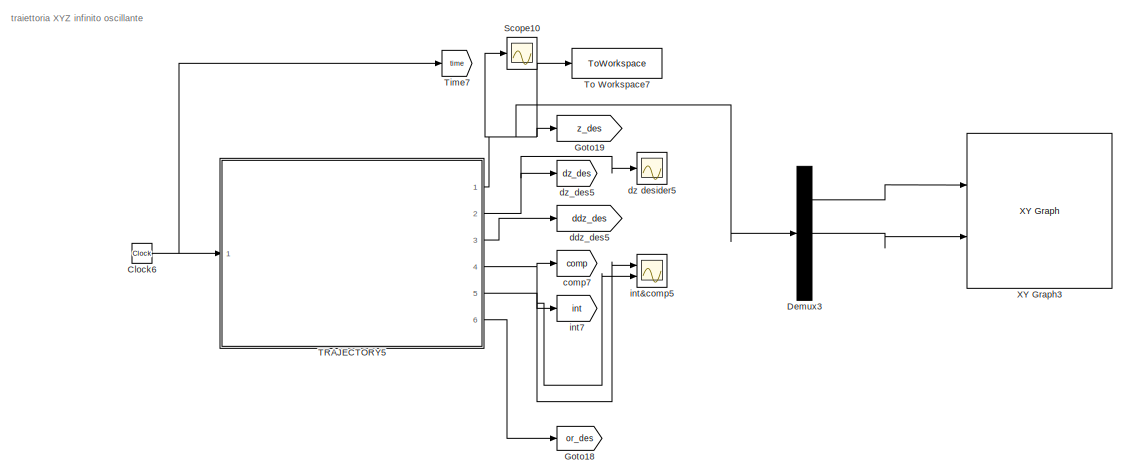
[diagram: root canvas - part 1/7, top left region]
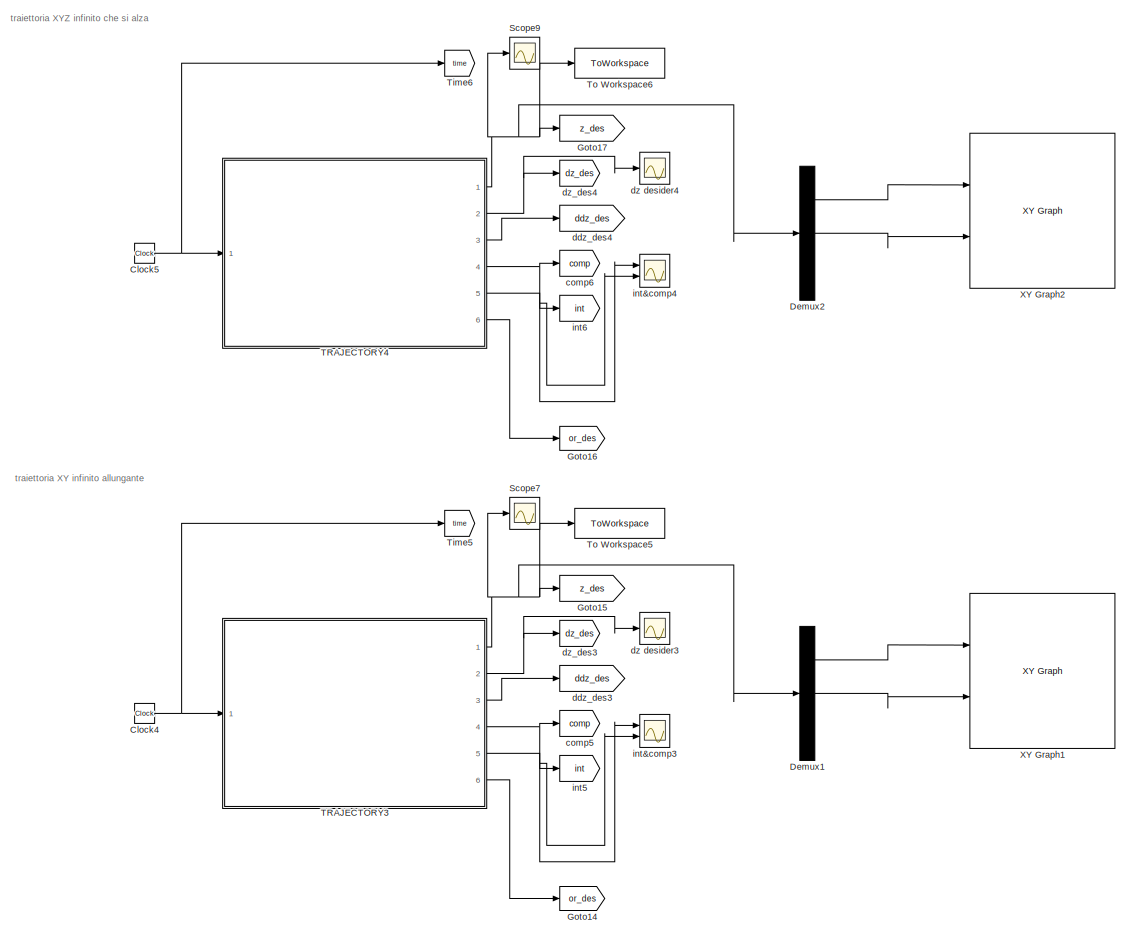
[diagram: root canvas - part 2/7, top left region]
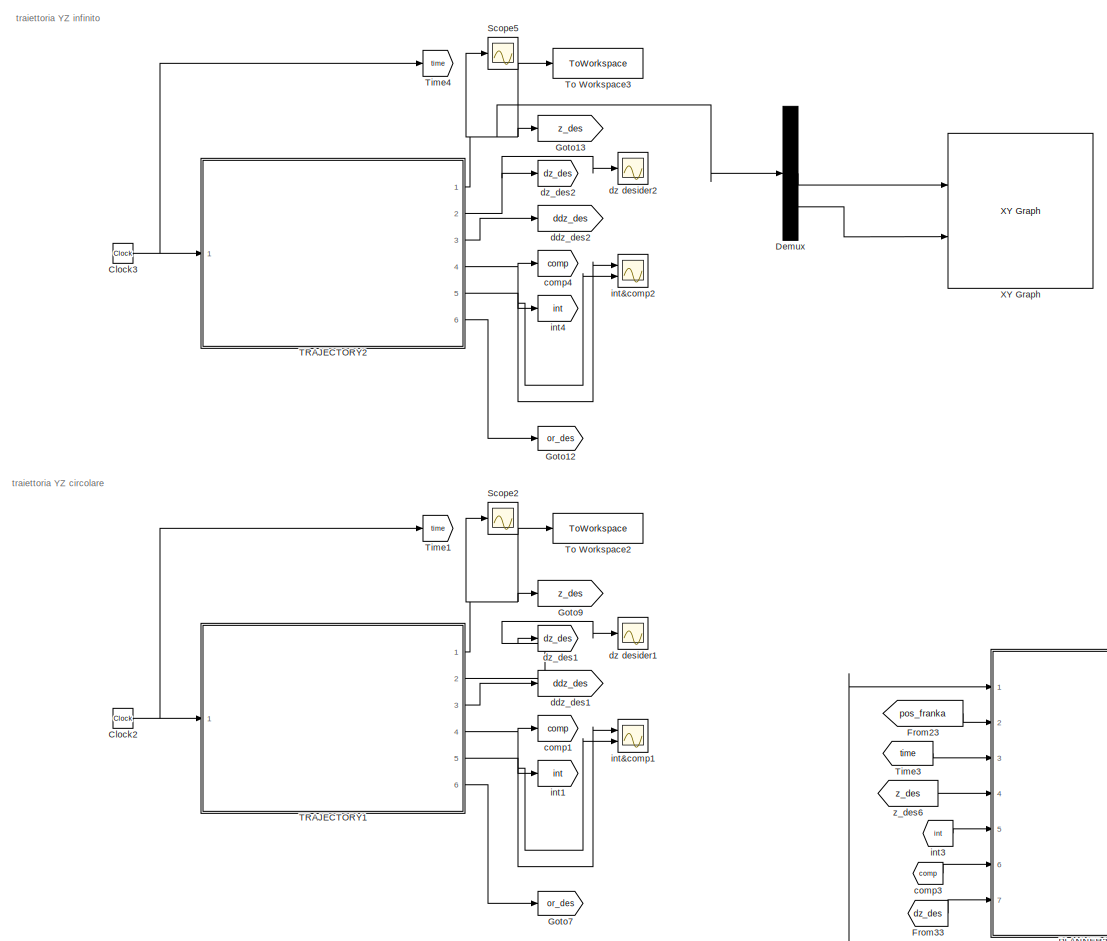
[diagram: root canvas - part 3/7, middle left region]
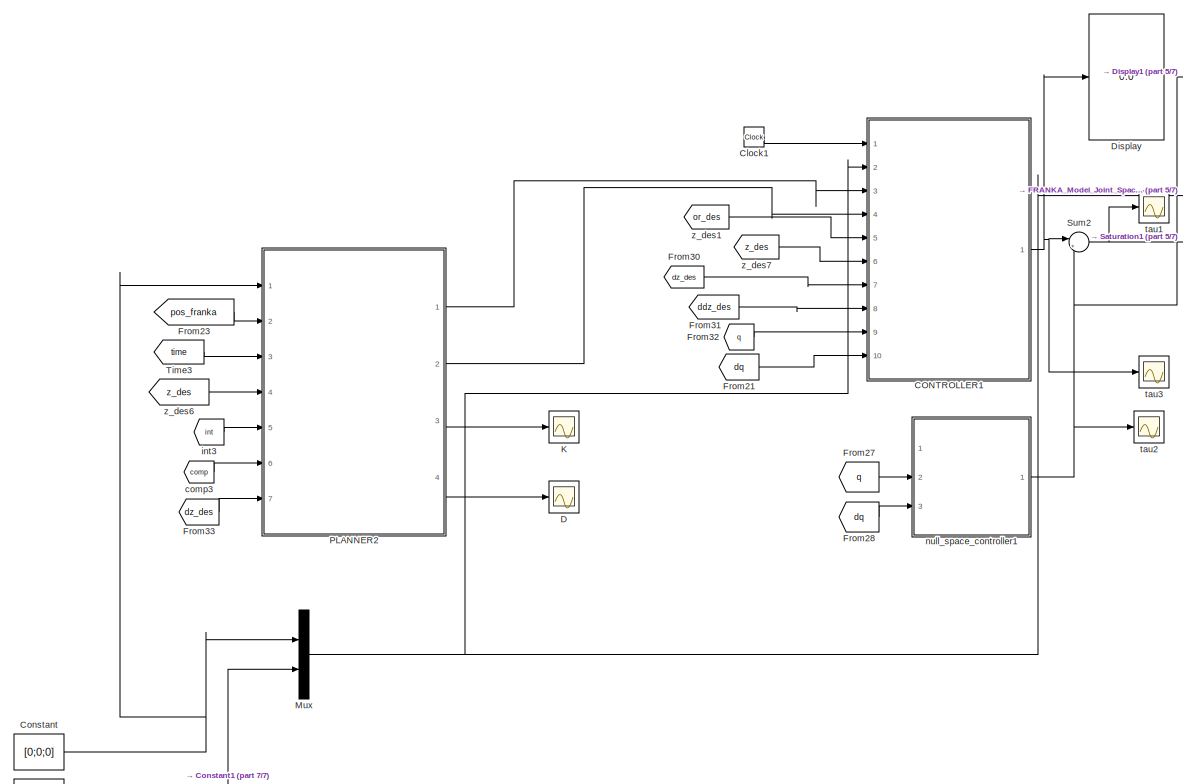
[diagram: root canvas - part 4/7, central region]
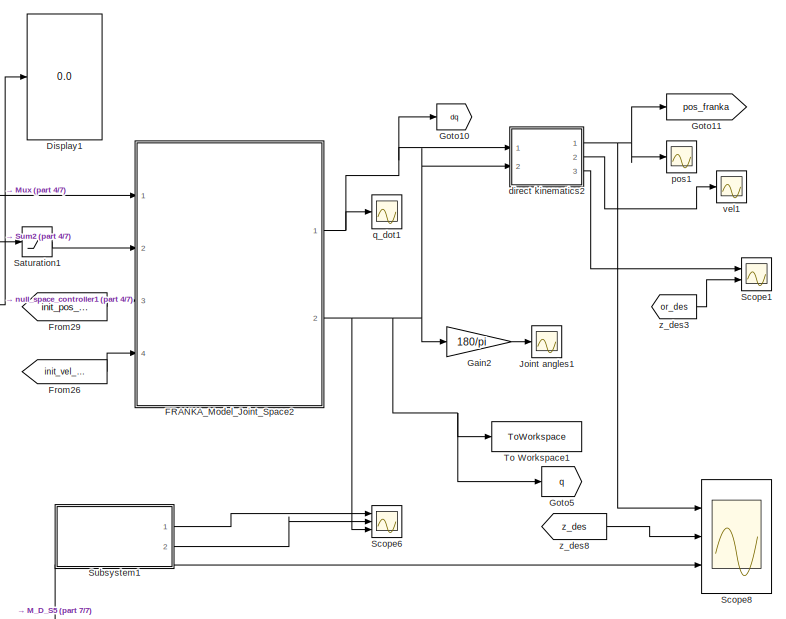
[diagram: root canvas - part 5/7, middle right region]
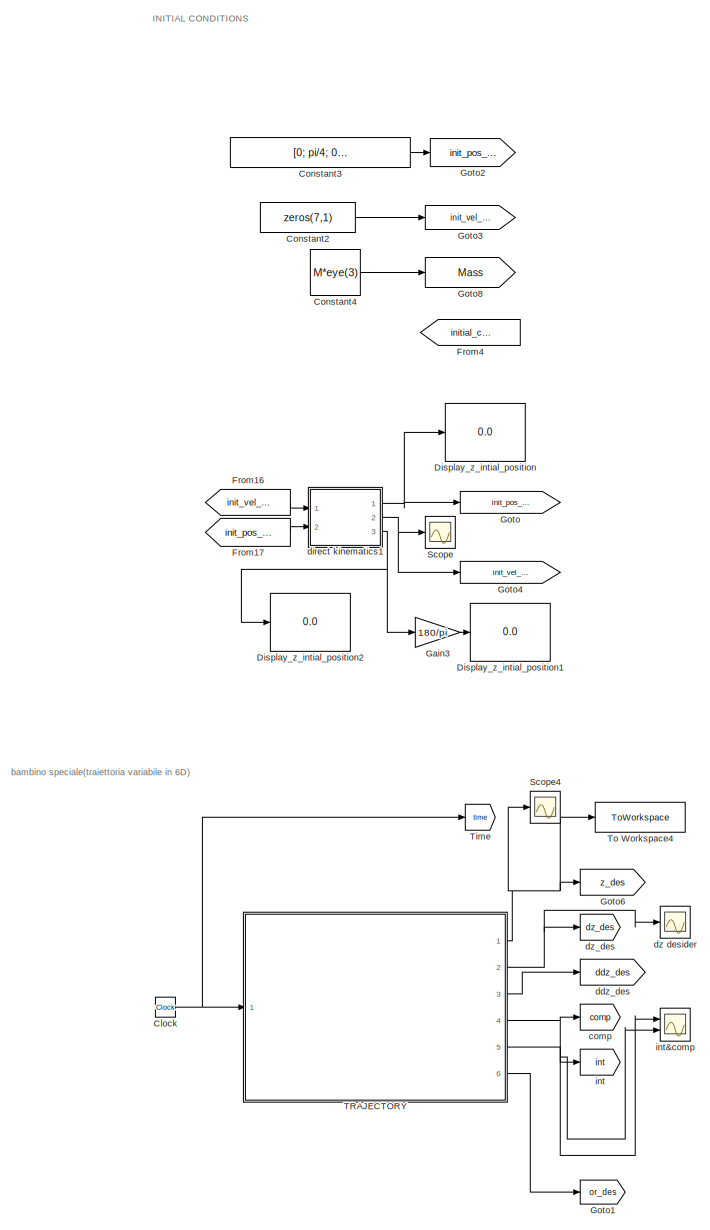
[diagram: root canvas - part 6/7, bottom left region]
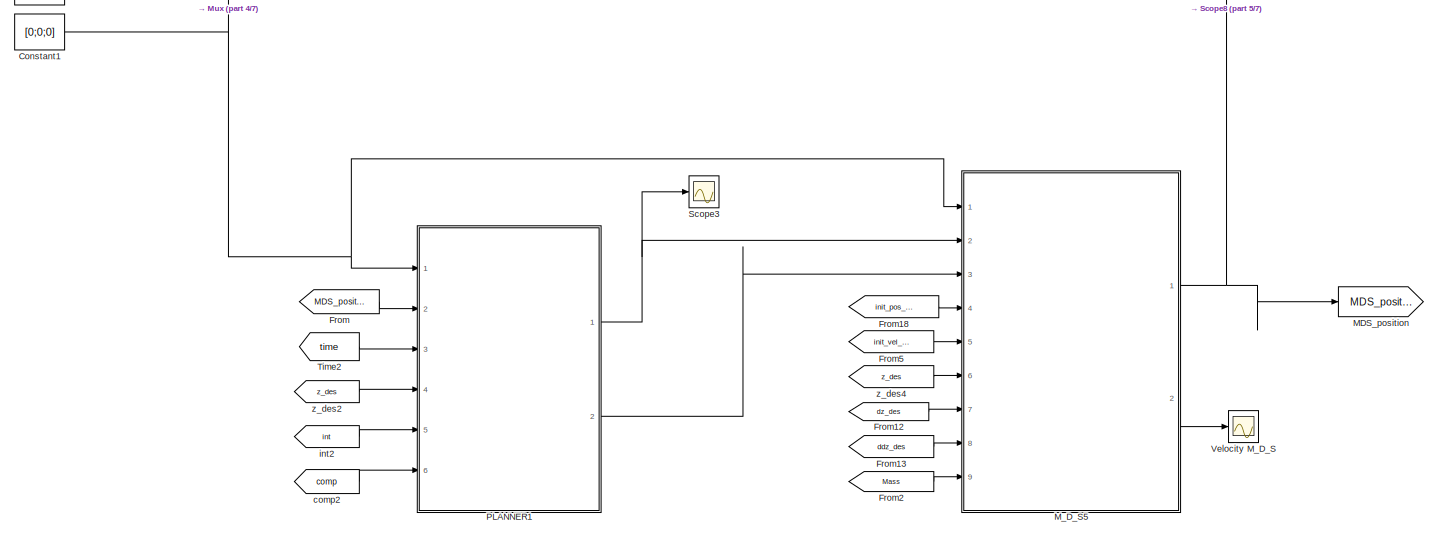
[diagram: root canvas - part 7/7, bottom center region]
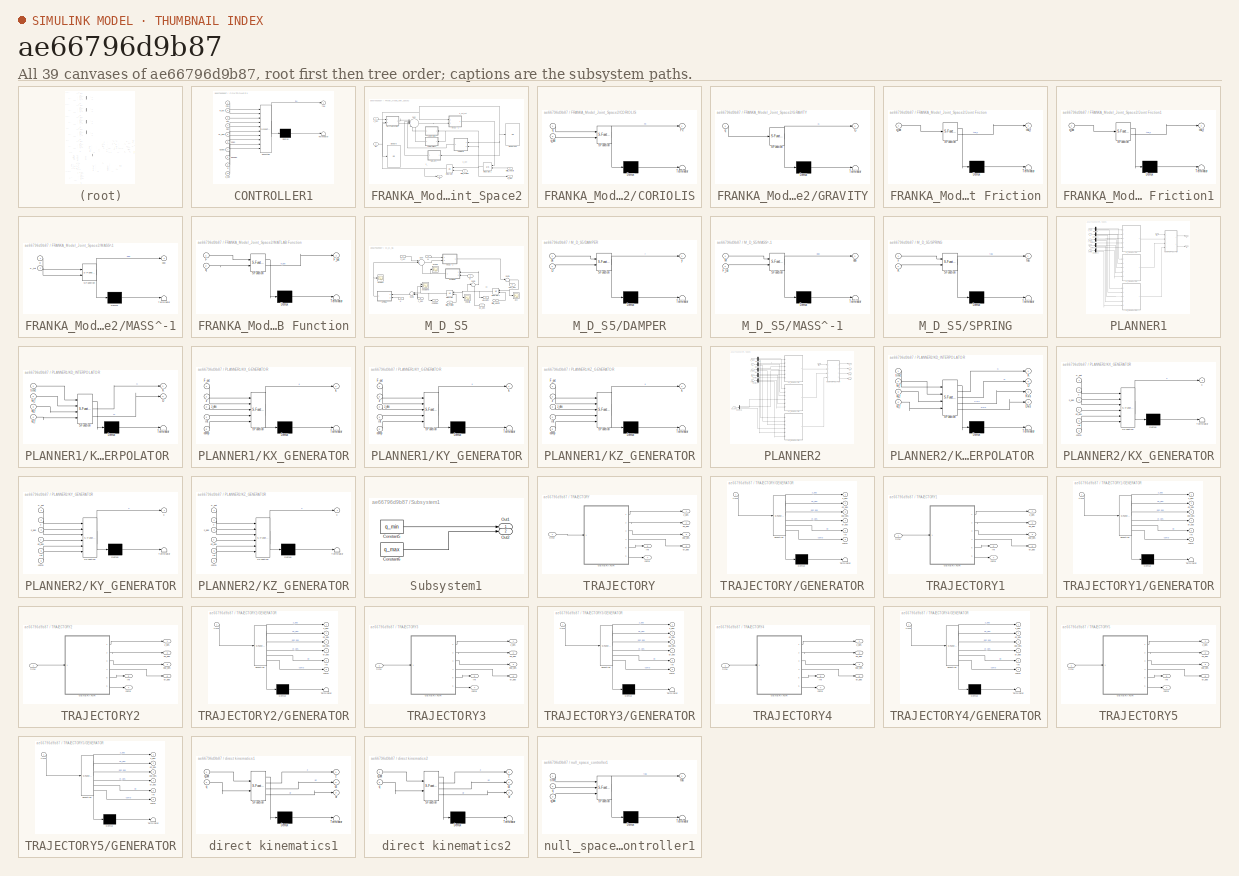
[diagram: thumbnail index - all 39 canvases of the model, root first then tree order]
MODEL slx_ae66796d9b87
KIND model
CONFIG AbsTol = auto
CONFIG EnableMultiTasking = off
CONFIG FixedStep = 0.001
CONFIG MaxStep = auto
CONFIG MinStep = auto
CONFIG RelTol = 1e-4
CONFIG SampleTimeConstraint = Unconstrained
CONFIG SolverName = ode1
CONFIG StartTime = 0.0
CONFIG StopTime = 5
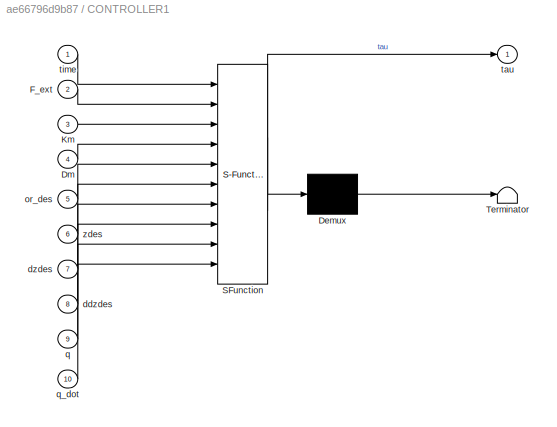
BLOCK [SubSystem] CONTROLLER1
  ErrorFcn = Stateflow.Translate.translate
  PermitHierarchicalResolution = ExplicitOnly
  Ports = [10, 1]
  RequestExecContextInheritance = off
  SFBlockType = MATLAB Function
  TreatAsAtomicUnit = on
BLOCK [Demux] CONTROLLER1/ Demux 
  Outputs = 1
  Ports = [1, 1]
BLOCK [S-Function] CONTROLLER1/ SFunction 
  EnableBusSupport = on
  FunctionName = sf_sfun
  Parameters = M
  PortCounts = [10 2]
  Ports = [10, 2]
  SFcnIsStateOwnerBlock = off
  SFunctionDeploymentMode = off
  Tag = Stateflow S-Function 27
BLOCK [Terminator] CONTROLLER1/ Terminator 
BLOCK [Inport] CONTROLLER1/Dm
  Port = 4
BLOCK [Inport] CONTROLLER1/F_ext
  Port = 2
BLOCK [Inport] CONTROLLER1/Km
  Port = 3
BLOCK [Inport] CONTROLLER1/ddzdes
  Port = 8
BLOCK [Inport] CONTROLLER1/dzdes
  Port = 7
BLOCK [Inport] CONTROLLER1/or_des
  Port = 5
BLOCK [Inport] CONTROLLER1/q
  Port = 9
BLOCK [Inport] CONTROLLER1/q_dot
  Port = 10
BLOCK [Outport] CONTROLLER1/tau
BLOCK [Inport] CONTROLLER1/time
BLOCK [Inport] CONTROLLER1/zdes
  Port = 6
BLOCK [Clock] Clock
  Commented = on
BLOCK [Clock] Clock1
BLOCK [Clock] Clock2
BLOCK [Clock] Clock3
  Commented = on
BLOCK [Clock] Clock4
  Commented = on
BLOCK [Clock] Clock5
  Commented = on
BLOCK [Clock] Clock6
  Commented = on
BLOCK [Constant] Constant
  Value = [0;0;0]
BLOCK [Constant] Constant1
  Value = [0;0;0]
BLOCK [Constant] Constant2
  Value = zeros(7,1)
BLOCK [Constant] Constant3
  Value = [0; pi/4; 0; -pi/2; 0; 0; 0]
  VectorParams1D = off
BLOCK [Constant] Constant4
  Value = M*eye(3)
BLOCK [Scope] D
  Floating = off
  NumInputPorts = 1
  Ports = [1]
  ScopeSpecificationString = Simulink.scopes.TimeScopeBlockCfg('CurrentConfiguration', extmgr.ConfigurationSet(extmgr.Configuration('Core','General UI',true),extmgr.Configuration('Core','Source UI',true),extmgr.Configuration('Sources','WiredSimulink',true,'DataLoggingVariableName','ScopeData2'),extmgr.Configuration('Visuals','Time Domain',true,'SerializedDisplays',{struct('MinYLimReal','2.01039','MaxYLimReal','60.0935','YLabe...<+1408ch>
BLOCK [Demux] Demux
  Commented = on
  Outputs = 3
  Ports = [1, 3]
BLOCK [Demux] Demux1
  Commented = on
  Outputs = 3
  Ports = [1, 3]
BLOCK [Demux] Demux2
  Commented = on
  Outputs = 3
  Ports = [1, 3]
BLOCK [Demux] Demux3
  Commented = on
  Outputs = 3
  Ports = [1, 3]
BLOCK [Display] Display
  Decimation = 1
  Ports = [1]
BLOCK [Display] Display1
  Decimation = 1
  Ports = [1]
BLOCK [Display] Display_z_intial_position
  Decimation = 1
  Ports = [1]
BLOCK [Display] Display_z_intial_position1
  Decimation = 1
  Ports = [1]
BLOCK [Display] Display_z_intial_position2
  Decimation = 1
  Ports = [1]
BLOCK [SubSystem] FRANKA_Model_Joint_Space2
  Ports = [4, 2]
  RequestExecContextInheritance = off
BLOCK [SubSystem] FRANKA_Model_Joint_Space2/CORIOLIS
  ErrorFcn = Stateflow.Translate.translate
  PermitHierarchicalResolution = ExplicitOnly
  Ports = [2, 1]
  RequestExecContextInheritance = off
  SFBlockType = MATLAB Function
  TreatAsAtomicUnit = on
BLOCK [Demux] FRANKA_Model_Joint_Space2/CORIOLIS/ Demux 
  Outputs = 1
  Ports = [1, 1]
BLOCK [S-Function] FRANKA_Model_Joint_Space2/CORIOLIS/ SFunction 
  EnableBusSupport = on
  FunctionName = sf_sfun
  PortCounts = [2 2]
  Ports = [2, 2]
  SFcnIsStateOwnerBlock = off
  SFunctionDeploymentMode = off
  Tag = Stateflow S-Function 28
BLOCK [Terminator] FRANKA_Model_Joint_Space2/CORIOLIS/ Terminator 
BLOCK [Outport] FRANKA_Model_Joint_Space2/CORIOLIS/Fc
BLOCK [Inport] FRANKA_Model_Joint_Space2/CORIOLIS/q
BLOCK [Inport] FRANKA_Model_Joint_Space2/CORIOLIS/q_dot
  Port = 2
BLOCK [Display] FRANKA_Model_Joint_Space2/Display5
  Decimation = 1
  Ports = [1]
BLOCK [Display] FRANKA_Model_Joint_Space2/Displayqqq
  Decimation = 1
  Ports = [1]
BLOCK [Inport] FRANKA_Model_Joint_Space2/F_ext
BLOCK [SubSystem] FRANKA_Model_Joint_Space2/GRAVITY
  ErrorFcn = Stateflow.Translate.translate
  PermitHierarchicalResolution = ExplicitOnly
  Ports = [1, 1]
  RequestExecContextInheritance = off
  SFBlockType = MATLAB Function
  TreatAsAtomicUnit = on
BLOCK [Demux] FRANKA_Model_Joint_Space2/GRAVITY/ Demux 
  Outputs = 1
  Ports = [1, 1]
BLOCK [S-Function] FRANKA_Model_Joint_Space2/GRAVITY/ SFunction 
  EnableBusSupport = on
  FunctionName = sf_sfun
  PortCounts = [1 2]
  Ports = [1, 2]
  SFcnIsStateOwnerBlock = off
  SFunctionDeploymentMode = off
  Tag = Stateflow S-Function 29
BLOCK [Terminator] FRANKA_Model_Joint_Space2/GRAVITY/ Terminator 
BLOCK [Outport] FRANKA_Model_Joint_Space2/GRAVITY/G
BLOCK [Inport] FRANKA_Model_Joint_Space2/GRAVITY/q
BLOCK [Inport] FRANKA_Model_Joint_Space2/Initial_Position
  NameLocation = top
  Port = 3
BLOCK [Inport] FRANKA_Model_Joint_Space2/Initial_Velocity
  Port = 4
BLOCK [Integrator] FRANKA_Model_Joint_Space2/Integrator
  InitialConditionSource = external
  Ports = [2, 1]
BLOCK [Integrator] FRANKA_Model_Joint_Space2/Integrator1
  InitialCondition = [0;0]
  InitialConditionSource = external
  Ports = [2, 1]
BLOCK [SubSystem] FRANKA_Model_Joint_Space2/Joint Friction
  ErrorFcn = Stateflow.Translate.translate
  PermitHierarchicalResolution = ExplicitOnly
  Ports = [1, 1]
  RequestExecContextInheritance = off
  SFBlockType = MATLAB Function
  TreatAsAtomicUnit = on
BLOCK [Demux] FRANKA_Model_Joint_Space2/Joint Friction/ Demux 
  Outputs = 1
  Ports = [1, 1]
BLOCK [S-Function] FRANKA_Model_Joint_Space2/Joint Friction/ SFunction 
  EnableBusSupport = on
  FunctionName = sf_sfun
  PortCounts = [1 2]
  Ports = [1, 2]
  SFcnIsStateOwnerBlock = off
  SFunctionDeploymentMode = off
  Tag = Stateflow S-Function 30
BLOCK [Terminator] FRANKA_Model_Joint_Space2/Joint Friction/ Terminator 
BLOCK [Inport] FRANKA_Model_Joint_Space2/Joint Friction/q_dot
BLOCK [Outport] FRANKA_Model_Joint_Space2/Joint Friction/tau_f
BLOCK [SubSystem] FRANKA_Model_Joint_Space2/Joint Friction1
  Commented = on
  ErrorFcn = Stateflow.Translate.translate
  PermitHierarchicalResolution = ExplicitOnly
  Ports = [1, 1]
  RequestExecContextInheritance = off
  SFBlockType = MATLAB Function
  TreatAsAtomicUnit = on
BLOCK [Demux] FRANKA_Model_Joint_Space2/Joint Friction1/ Demux 
  Outputs = 1
  Ports = [1, 1]
BLOCK [S-Function] FRANKA_Model_Joint_Space2/Joint Friction1/ SFunction 
  EnableBusSupport = on
  FunctionName = sf_sfun
  PortCounts = [1 2]
  Ports = [1, 2]
  SFcnIsStateOwnerBlock = off
  SFunctionDeploymentMode = off
  Tag = Stateflow S-Function 31
BLOCK [Terminator] FRANKA_Model_Joint_Space2/Joint Friction1/ Terminator 
BLOCK [Inport] FRANKA_Model_Joint_Space2/Joint Friction1/q_dot
BLOCK [Outport] FRANKA_Model_Joint_Space2/Joint Friction1/tau_f
BLOCK [SubSystem] FRANKA_Model_Joint_Space2/MASS^-1
  ErrorFcn = Stateflow.Translate.translate
  PermitHierarchicalResolution = ExplicitOnly
  Ports = [2, 1]
  RequestExecContextInheritance = off
  SFBlockType = MATLAB Function
  TreatAsAtomicUnit = on
BLOCK [Demux] FRANKA_Model_Joint_Space2/MASS^-1/ Demux 
  Outputs = 1
  Ports = [1, 1]
BLOCK [S-Function] FRANKA_Model_Joint_Space2/MASS^-1/ SFunction 
  EnableBusSupport = on
  FunctionName = sf_sfun
  PortCounts = [2 2]
  Ports = [2, 2]
  SFcnIsStateOwnerBlock = off
  SFunctionDeploymentMode = off
  Tag = Stateflow S-Function 32
BLOCK [Terminator] FRANKA_Model_Joint_Space2/MASS^-1/ Terminator 
BLOCK [Inport] FRANKA_Model_Joint_Space2/MASS^-1/F_tot
  Port = 2
BLOCK [Outport] FRANKA_Model_Joint_Space2/MASS^-1/ddq
BLOCK [Inport] FRANKA_Model_Joint_Space2/MASS^-1/q
BLOCK [SubSystem] FRANKA_Model_Joint_Space2/MATLAB Function
  ErrorFcn = Stateflow.Translate.translate
  PermitHierarchicalResolution = ExplicitOnly
  Ports = [2, 1]
  RequestExecContextInheritance = off
  SFBlockType = MATLAB Function
  TreatAsAtomicUnit = on
BLOCK [Demux] FRANKA_Model_Joint_Space2/MATLAB Function/ Demux 
  Outputs = 1
  Ports = [1, 1]
BLOCK [S-Function] FRANKA_Model_Joint_Space2/MATLAB Function/ SFunction 
  EnableBusSupport = on
  FunctionName = sf_sfun
  PortCounts = [2 2]
  Ports = [2, 2]
  SFcnIsStateOwnerBlock = off
  SFunctionDeploymentMode = off
  Tag = Stateflow S-Function 33
BLOCK [Terminator] FRANKA_Model_Joint_Space2/MATLAB Function/ Terminator 
BLOCK [Inport] FRANKA_Model_Joint_Space2/MATLAB Function/F
BLOCK [Outport] FRANKA_Model_Joint_Space2/MATLAB Function/F_ext
BLOCK [Inport] FRANKA_Model_Joint_Space2/MATLAB Function/q
  Port = 2
BLOCK [Sum] FRANKA_Model_Joint_Space2/Sum
  Inputs = ||+--+-+
  Ports = [6, 1]
BLOCK [Outport] FRANKA_Model_Joint_Space2/q
  Port = 2
BLOCK [Outport] FRANKA_Model_Joint_Space2/q_dot
BLOCK [Inport] FRANKA_Model_Joint_Space2/tau
  Port = 2
BLOCK [From] From
  GotoTag = MDS_position
BLOCK [From] From12
  GotoTag = dz_des
  TagVisibility = global
BLOCK [From] From13
  GotoTag = ddz_des
BLOCK [From] From16
  GotoTag = init_vel_franka
BLOCK [From] From17
  GotoTag = init_pos_franka
BLOCK [From] From18
  GotoTag = init_pos_MDS
BLOCK [From] From2
  GotoTag = Mass
BLOCK [From] From21
  GotoTag = dq
BLOCK [From] From23
  GotoTag = pos_franka
BLOCK [From] From26
  GotoTag = init_vel_franka
BLOCK [From] From27
  GotoTag = q
BLOCK [From] From28
  GotoTag = dq
BLOCK [From] From29
  GotoTag = init_pos_franka
BLOCK [From] From30
  GotoTag = dz_des
  TagVisibility = global
BLOCK [From] From31
  GotoTag = ddz_des
BLOCK [From] From32
  GotoTag = q
BLOCK [From] From33
  GotoTag = dz_des
  TagVisibility = global
BLOCK [From] From4
  Commented = on
  GotoTag = initial_condition
BLOCK [From] From5
  GotoTag = init_vel_MDS
BLOCK [Gain] Gain2
  Gain = 180/pi
BLOCK [Gain] Gain3
  Gain = 180/pi
BLOCK [Goto] Goto
  GotoTag = init_pos_MDS
BLOCK [Goto] Goto1
  Commented = on
  GotoTag = or_des
BLOCK [Goto] Goto10
  GotoTag = dq
BLOCK [Goto] Goto11
  GotoTag = pos_franka
BLOCK [Goto] Goto12
  Commented = on
  GotoTag = or_des
BLOCK [Goto] Goto13
  Commented = on
  GotoTag = z_des
BLOCK [Goto] Goto14
  Commented = on
  GotoTag = or_des
BLOCK [Goto] Goto15
  Commented = on
  GotoTag = z_des
BLOCK [Goto] Goto16
  Commented = on
  GotoTag = or_des
BLOCK [Goto] Goto17
  Commented = on
  GotoTag = z_des
BLOCK [Goto] Goto18
  Commented = on
  GotoTag = or_des
BLOCK [Goto] Goto19
  Commented = on
  GotoTag = z_des
BLOCK [Goto] Goto2
  GotoTag = init_pos_franka
BLOCK [Goto] Goto3
  GotoTag = init_vel_franka
BLOCK [Goto] Goto4
  GotoTag = init_vel_MDS
BLOCK [Goto] Goto5
  GotoTag = q
BLOCK [Goto] Goto6
  Commented = on
  GotoTag = z_des
BLOCK [Goto] Goto7
  GotoTag = or_des
BLOCK [Goto] Goto8
  GotoTag = Mass
BLOCK [Goto] Goto9
  GotoTag = z_des
BLOCK [Scope] Joint angles1
  Floating = off
  NumInputPorts = 1
  Ports = [1]
  ScopeSpecificationString = Simulink.scopes.TimeScopeBlockCfg('CurrentConfiguration', extmgr.ConfigurationSet(extmgr.Configuration('Core','General UI',true),extmgr.Configuration('Core','Source UI',true),extmgr.Configuration('Sources','WiredSimulink',true,'DataLoggingVariableName','ScopeData3'),extmgr.Configuration('Visuals','Time Domain',true,'SerializedDisplays',{struct('MinYLimReal','-158.36602','MaxYLimReal','103.80353','...<+1669ch>
BLOCK [Scope] K
  Floating = off
  NumInputPorts = 1
  Ports = [1]
  ScopeSpecificationString = Simulink.scopes.TimeScopeBlockCfg('CurrentConfiguration', extmgr.ConfigurationSet(extmgr.Configuration('Core','General UI',true),extmgr.Configuration('Core','Source UI',true),extmgr.Configuration('Sources','WiredSimulink',true,'DataLoggingVariableName','ScopeData1'),extmgr.Configuration('Visuals','Time Domain',true,'SerializedDisplays',{struct('MinYLimReal','100.00000','MaxYLimReal','300.00000','Y...<+1545ch>
BLOCK [Goto] MDS_position
  GotoTag = MDS_position
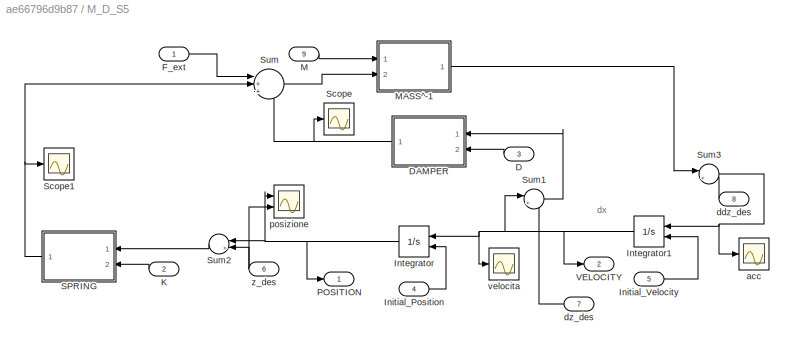
BLOCK [SubSystem] M_D_S5
  Ports = [9, 2]
  RequestExecContextInheritance = off
BLOCK [Inport] M_D_S5/D
  Port = 3
BLOCK [SubSystem] M_D_S5/DAMPER
  ErrorFcn = Stateflow.Translate.translate
  PermitHierarchicalResolution = ExplicitOnly
  Ports = [2, 1]
  RequestExecContextInheritance = off
  SFBlockType = MATLAB Function
  TreatAsAtomicUnit = on
BLOCK [Demux] M_D_S5/DAMPER/ Demux 
  Outputs = 1
  Ports = [1, 1]
BLOCK [S-Function] M_D_S5/DAMPER/ SFunction 
  EnableBusSupport = on
  FunctionName = sf_sfun
  PortCounts = [2 2]
  Ports = [2, 2]
  SFcnIsStateOwnerBlock = off
  SFunctionDeploymentMode = off
  Tag = Stateflow S-Function 21
BLOCK [Terminator] M_D_S5/DAMPER/ Terminator 
BLOCK [Inport] M_D_S5/DAMPER/D
  Port = 2
BLOCK [Inport] M_D_S5/DAMPER/dx
BLOCK [Outport] M_D_S5/DAMPER/y
BLOCK [Inport] M_D_S5/F_ext
BLOCK [Inport] M_D_S5/Initial_Position
  Port = 4
BLOCK [Inport] M_D_S5/Initial_Velocity
  Port = 5
BLOCK [Integrator] M_D_S5/Integrator
  InitialConditionSource = external
  Ports = [2, 1]
BLOCK [Integrator] M_D_S5/Integrator1
  InitialConditionSource = external
  Ports = [2, 1]
BLOCK [Inport] M_D_S5/K
  Port = 2
BLOCK [Inport] M_D_S5/M
  Port = 9
BLOCK [SubSystem] M_D_S5/MASS^-1
  ErrorFcn = Stateflow.Translate.translate
  PermitHierarchicalResolution = ExplicitOnly
  Ports = [2, 1]
  RequestExecContextInheritance = off
  SFBlockType = MATLAB Function
  TreatAsAtomicUnit = on
BLOCK [Demux] M_D_S5/MASS^-1/ Demux 
  Outputs = 1
  Ports = [1, 1]
BLOCK [S-Function] M_D_S5/MASS^-1/ SFunction 
  EnableBusSupport = on
  FunctionName = sf_sfun
  PortCounts = [2 2]
  Ports = [2, 2]
  SFcnIsStateOwnerBlock = off
  SFunctionDeploymentMode = off
  Tag = Stateflow S-Function 22
BLOCK [Terminator] M_D_S5/MASS^-1/ Terminator 
BLOCK [Inport] M_D_S5/MASS^-1/F_tot
  Port = 2
BLOCK [Inport] M_D_S5/MASS^-1/M
BLOCK [Outport] M_D_S5/MASS^-1/ddx
BLOCK [Outport] M_D_S5/POSITION
BLOCK [SubSystem] M_D_S5/SPRING
  ErrorFcn = Stateflow.Translate.translate
  PermitHierarchicalResolution = ExplicitOnly
  Ports = [2, 1]
  RequestExecContextInheritance = off
  SFBlockType = MATLAB Function
  TreatAsAtomicUnit = on
BLOCK [Demux] M_D_S5/SPRING/ Demux 
  Outputs = 1
  Ports = [1, 1]
BLOCK [S-Function] M_D_S5/SPRING/ SFunction 
  EnableBusSupport = on
  FunctionName = sf_sfun
  PortCounts = [2 2]
  Ports = [2, 2]
  SFcnIsStateOwnerBlock = off
  SFunctionDeploymentMode = off
  Tag = Stateflow S-Function 23
BLOCK [Terminator] M_D_S5/SPRING/ Terminator 
BLOCK [Inport] M_D_S5/SPRING/K
  Port = 2
BLOCK [Outport] M_D_S5/SPRING/tau
BLOCK [Inport] M_D_S5/SPRING/x
BLOCK [Scope] M_D_S5/Scope
  Floating = off
  NumInputPorts = 1
  Ports = [1]
  ScopeSpecificationString = Simulink.scopes.TimeScopeBlockCfg('CurrentConfiguration', extmgr.ConfigurationSet(extmgr.Configuration('Core','General UI',true),extmgr.Configuration('Core','Source UI',true),extmgr.Configuration('Sources','WiredSimulink',true,'DataLoggingVariableName','ScopeData15'),extmgr.Configuration('Visuals','Time Domain',true,'SerializedDisplays',{struct('MinYLimReal','-37.99931','MaxYLimReal','6.12026','YL...<+1429ch>
BLOCK [Scope] M_D_S5/Scope1
  Floating = off
  NumInputPorts = 1
  Ports = [1]
  ScopeSpecificationString = Simulink.scopes.TimeScopeBlockCfg('CurrentConfiguration', extmgr.ConfigurationSet(extmgr.Configuration('Core','General UI',true),extmgr.Configuration('Core','Source UI',true),extmgr.Configuration('Sources','WiredSimulink',true,'DataLoggingVariableName','ScopeData17'),extmgr.Configuration('Visuals','Time Domain',true,'SerializedDisplays',{struct('MinYLimReal','-42.49417','MaxYLimReal','4.72157','YL...<+1454ch>
BLOCK [Sum] M_D_S5/Sum
  Inputs = |+++
  Ports = [3, 1]
BLOCK [Sum] M_D_S5/Sum1
  Inputs = |+-
  Ports = [2, 1]
BLOCK [Sum] M_D_S5/Sum2
  Inputs = |+-
  Ports = [2, 1]
BLOCK [Sum] M_D_S5/Sum3
  Inputs = |++
  Ports = [2, 1]
BLOCK [Outport] M_D_S5/VELOCITY
  Port = 2
BLOCK [Scope] M_D_S5/acc
  Floating = off
  NumInputPorts = 1
  Ports = [1]
  ScopeSpecificationString = Simulink.scopes.TimeScopeBlockCfg('CurrentConfiguration', extmgr.ConfigurationSet(extmgr.Configuration('Core','General UI',true),extmgr.Configuration('Core','Source UI',true),extmgr.Configuration('Sources','WiredSimulink',true,'DataLoggingVariableName','ScopeData6'),extmgr.Configuration('Visuals','Time Domain',true,'SerializedDisplays',{struct('MinYLimReal','-10.14929','MaxYLimReal','22.48721','YL...<+1470ch>
BLOCK [Inport] M_D_S5/ddz_des
  Port = 8
BLOCK [Inport] M_D_S5/dz_des
  Port = 7
BLOCK [Scope] M_D_S5/posizione
  Floating = off
  NumInputPorts = 2
  Ports = [2]
  ScopeSpecificationString = Simulink.scopes.TimeScopeBlockCfg('CurrentConfiguration', extmgr.ConfigurationSet(extmgr.Configuration('Core','General UI',true),extmgr.Configuration('Core','Source UI',true),extmgr.Configuration('Sources','WiredSimulink',true,'DataLoggingVariableName','ScopeData8'),extmgr.Configuration('Visuals','Time Domain',true,'SerializedDisplays',{struct('MinYLimReal','-0.15023','MaxYLimReal','1.35207','YLab...<+1431ch>
BLOCK [Scope] M_D_S5/velocita
  Floating = off
  NumInputPorts = 1
  Ports = [1]
  ScopeSpecificationString = Simulink.scopes.TimeScopeBlockCfg('CurrentConfiguration', extmgr.ConfigurationSet(extmgr.Configuration('Core','General UI',true),extmgr.Configuration('Core','Source UI',true),extmgr.Configuration('Sources','WiredSimulink',true,'DataLoggingVariableName','ScopeData7'),extmgr.Configuration('Visuals','Time Domain',true,'SerializedDisplays',{struct('MinYLimReal','-0.64463','MaxYLimReal','2.63053','YLab...<+1417ch>
BLOCK [Inport] M_D_S5/z_des
  Port = 6
BLOCK [Mux] Mux
  DisplayOption = bar
  Inputs = 2
  Ports = [2, 1]
BLOCK [SubSystem] PLANNER1
  Ports = [6, 2]
  RequestExecContextInheritance = off
BLOCK [Outport] PLANNER1/D
  Port = 2
BLOCK [Demux] PLANNER1/Demux
  Outputs = 3
  Ports = [1, 3]
BLOCK [Demux] PLANNER1/Demux1
  Outputs = 3
  Ports = [1, 3]
BLOCK [Demux] PLANNER1/Demux2
  Outputs = 3
  Ports = [1, 3]
BLOCK [Demux] PLANNER1/Demux3
  Outputs = 3
  Ports = [1, 3]
BLOCK [Demux] PLANNER1/Demux4
  Outputs = 3
  Ports = [1, 3]
BLOCK [Inport] PLANNER1/F_ext
BLOCK [Outport] PLANNER1/K
BLOCK [SubSystem] PLANNER1/KD_INTERPOLATOR 
  ErrorFcn = Stateflow.Translate.translate
  PermitHierarchicalResolution = ExplicitOnly
  Ports = [4, 2]
  RequestExecContextInheritance = off
  SFBlockType = MATLAB Function
  TreatAsAtomicUnit = on
BLOCK [Demux] PLANNER1/KD_INTERPOLATOR / Demux 
  Outputs = 1
  Ports = [1, 1]
BLOCK [S-Function] PLANNER1/KD_INTERPOLATOR / SFunction 
  EnableBusSupport = on
  FunctionName = sf_sfun
  Parameters = F_max,M,a0,berta,csi,e_max,mass
  PortCounts = [4 3]
  Ports = [4, 3]
  SFcnIsStateOwnerBlock = off
  SFunctionDeploymentMode = off
  Tag = Stateflow S-Function 6
BLOCK [Terminator] PLANNER1/KD_INTERPOLATOR / Terminator 
BLOCK [Outport] PLANNER1/KD_INTERPOLATOR /D
  Port = 2
BLOCK [Outport] PLANNER1/KD_INTERPOLATOR /K
BLOCK [Inport] PLANNER1/KD_INTERPOLATOR /kx_f
  Port = 2
BLOCK [Inport] PLANNER1/KD_INTERPOLATOR /ky_f
  Port = 3
BLOCK [Inport] PLANNER1/KD_INTERPOLATOR /kz_f
  Port = 4
BLOCK [Inport] PLANNER1/KD_INTERPOLATOR /time
BLOCK [SubSystem] PLANNER1/KX_GENERATOR
  ErrorFcn = Stateflow.Translate.translate
  PermitHierarchicalResolution = ExplicitOnly
  Ports = [5, 1]
  RequestExecContextInheritance = off
  SFBlockType = MATLAB Function
  TreatAsAtomicUnit = on
BLOCK [Demux] PLANNER1/KX_GENERATOR/ Demux 
  Outputs = 1
  Ports = [1, 1]
BLOCK [S-Function] PLANNER1/KX_GENERATOR/ SFunction 
  EnableBusSupport = on
  FunctionName = sf_sfun
  Parameters = F_int_max,F_max,e_max
  PortCounts = [5 2]
  Ports = [5, 2]
  SFcnIsStateOwnerBlock = off
  SFunctionDeploymentMode = off
  Tag = Stateflow S-Function 7
BLOCK [Terminator] PLANNER1/KX_GENERATOR/ Terminator 
BLOCK [Inport] PLANNER1/KX_GENERATOR/F_ext
BLOCK [Inport] PLANNER1/KX_GENERATOR/comp
  Port = 5
BLOCK [Inport] PLANNER1/KX_GENERATOR/int
  Port = 4
BLOCK [Outport] PLANNER1/KX_GENERATOR/k
BLOCK [Inport] PLANNER1/KX_GENERATOR/z
  Port = 2
BLOCK [Inport] PLANNER1/KX_GENERATOR/z_des
  Port = 3
BLOCK [SubSystem] PLANNER1/KY_GENERATOR
  ErrorFcn = Stateflow.Translate.translate
  PermitHierarchicalResolution = ExplicitOnly
  Ports = [5, 1]
  RequestExecContextInheritance = off
  SFBlockType = MATLAB Function
  TreatAsAtomicUnit = on
BLOCK [Demux] PLANNER1/KY_GENERATOR/ Demux 
  Outputs = 1
  Ports = [1, 1]
BLOCK [S-Function] PLANNER1/KY_GENERATOR/ SFunction 
  EnableBusSupport = on
  FunctionName = sf_sfun
  Parameters = F_int_max,F_max,e_max
  PortCounts = [5 2]
  Ports = [5, 2]
  SFcnIsStateOwnerBlock = off
  SFunctionDeploymentMode = off
  Tag = Stateflow S-Function 10
BLOCK [Terminator] PLANNER1/KY_GENERATOR/ Terminator 
BLOCK [Inport] PLANNER1/KY_GENERATOR/F_ext
BLOCK [Inport] PLANNER1/KY_GENERATOR/comp
  Port = 5
BLOCK [Inport] PLANNER1/KY_GENERATOR/int
  Port = 4
BLOCK [Outport] PLANNER1/KY_GENERATOR/k
BLOCK [Inport] PLANNER1/KY_GENERATOR/z
  Port = 2
BLOCK [Inport] PLANNER1/KY_GENERATOR/z_des
  Port = 3
BLOCK [SubSystem] PLANNER1/KZ_GENERATOR
  ErrorFcn = Stateflow.Translate.translate
  PermitHierarchicalResolution = ExplicitOnly
  Ports = [5, 1]
  RequestExecContextInheritance = off
  SFBlockType = MATLAB Function
  TreatAsAtomicUnit = on
BLOCK [Demux] PLANNER1/KZ_GENERATOR/ Demux 
  Outputs = 1
  Ports = [1, 1]
BLOCK [S-Function] PLANNER1/KZ_GENERATOR/ SFunction 
  EnableBusSupport = on
  FunctionName = sf_sfun
  Parameters = F_int_max,F_max,e_max
  PortCounts = [5 2]
  Ports = [5, 2]
  SFcnIsStateOwnerBlock = off
  SFunctionDeploymentMode = off
  Tag = Stateflow S-Function 13
BLOCK [Terminator] PLANNER1/KZ_GENERATOR/ Terminator 
BLOCK [Inport] PLANNER1/KZ_GENERATOR/F_ext
BLOCK [Inport] PLANNER1/KZ_GENERATOR/comp
  Port = 5
BLOCK [Inport] PLANNER1/KZ_GENERATOR/int
  Port = 4
BLOCK [Outport] PLANNER1/KZ_GENERATOR/k
BLOCK [Inport] PLANNER1/KZ_GENERATOR/z
  Port = 2
BLOCK [Inport] PLANNER1/KZ_GENERATOR/z_des
  Port = 3
BLOCK [Inport] PLANNER1/comp
  Port = 6
BLOCK [Inport] PLANNER1/int
  Port = 5
BLOCK [Inport] PLANNER1/time
  Port = 3
BLOCK [Inport] PLANNER1/z
  Port = 2
BLOCK [Inport] PLANNER1/z_des
  Port = 4
BLOCK [SubSystem] PLANNER2
  Ports = [7, 4]
  RequestExecContextInheritance = off
BLOCK [Outport] PLANNER2/D
  Port = 2
BLOCK [Demux] PLANNER2/Demux
  Outputs = 3
  Ports = [1, 3]
BLOCK [Demux] PLANNER2/Demux1
  Outputs = 3
  Ports = [1, 3]
BLOCK [Demux] PLANNER2/Demux2
  Outputs = 3
  Ports = [1, 3]
BLOCK [Demux] PLANNER2/Demux3
  Outputs = 3
  Ports = [1, 3]
BLOCK [Demux] PLANNER2/Demux4
  Outputs = 3
  Ports = [1, 3]
BLOCK [Demux] PLANNER2/Demux5
  Outputs = 3
  Ports = [1, 3]
BLOCK [Inport] PLANNER2/F_ext
BLOCK [Outport] PLANNER2/K
BLOCK [SubSystem] PLANNER2/KD_INTERPOLATOR 
  ErrorFcn = Stateflow.Translate.translate
  PermitHierarchicalResolution = ExplicitOnly
  Ports = [4, 4]
  RequestExecContextInheritance = off
  SFBlockType = MATLAB Function
  TreatAsAtomicUnit = on
BLOCK [Demux] PLANNER2/KD_INTERPOLATOR / Demux 
  Outputs = 1
  Ports = [1, 1]
BLOCK [S-Function] PLANNER2/KD_INTERPOLATOR / SFunction 
  EnableBusSupport = on
  FunctionName = sf_sfun
  Parameters = F_max,M,a0,berta,csi,e_max,mass
  PortCounts = [4 5]
  Ports = [4, 5]
  SFcnIsStateOwnerBlock = off
  SFunctionDeploymentMode = off
  Tag = Stateflow S-Function 36
BLOCK [Terminator] PLANNER2/KD_INTERPOLATOR / Terminator 
BLOCK [Outport] PLANNER2/KD_INTERPOLATOR /D
  Port = 2
BLOCK [Outport] PLANNER2/KD_INTERPOLATOR /Dvis
  Port = 4
BLOCK [Outport] PLANNER2/KD_INTERPOLATOR /K
BLOCK [Outport] PLANNER2/KD_INTERPOLATOR /Kvis
  Port = 3
BLOCK [Inport] PLANNER2/KD_INTERPOLATOR /kx_f
  Port = 2
BLOCK [Inport] PLANNER2/KD_INTERPOLATOR /ky_f
  Port = 3
BLOCK [Inport] PLANNER2/KD_INTERPOLATOR /kz_f
  Port = 4
BLOCK [Inport] PLANNER2/KD_INTERPOLATOR /time
BLOCK [SubSystem] PLANNER2/KX_GENERATOR
  ErrorFcn = Stateflow.Translate.translate
  PermitHierarchicalResolution = ExplicitOnly
  Ports = [6, 1]
  RequestExecContextInheritance = off
  SFBlockType = MATLAB Function
  TreatAsAtomicUnit = on
BLOCK [Demux] PLANNER2/KX_GENERATOR/ Demux 
  Outputs = 1
  Ports = [1, 1]
BLOCK [S-Function] PLANNER2/KX_GENERATOR/ SFunction 
  EnableBusSupport = on
  FunctionName = sf_sfun
  Parameters = F_int_max,F_max,e_max
  PortCounts = [6 2]
  Ports = [6, 2]
  SFcnIsStateOwnerBlock = off
  SFunctionDeploymentMode = off
  Tag = Stateflow S-Function 37
BLOCK [Terminator] PLANNER2/KX_GENERATOR/ Terminator 
BLOCK [Inport] PLANNER2/KX_GENERATOR/F_ext
BLOCK [Inport] PLANNER2/KX_GENERATOR/comp
  Port = 6
BLOCK [Inport] PLANNER2/KX_GENERATOR/dz_des
  Port = 4
BLOCK [Inport] PLANNER2/KX_GENERATOR/int
  Port = 5
BLOCK [Outport] PLANNER2/KX_GENERATOR/k
BLOCK [Inport] PLANNER2/KX_GENERATOR/z
  Port = 2
BLOCK [Inport] PLANNER2/KX_GENERATOR/z_des
  Port = 3
BLOCK [SubSystem] PLANNER2/KY_GENERATOR
  ErrorFcn = Stateflow.Translate.translate
  PermitHierarchicalResolution = ExplicitOnly
  Ports = [6, 1]
  RequestExecContextInheritance = off
  SFBlockType = MATLAB Function
  TreatAsAtomicUnit = on
BLOCK [Demux] PLANNER2/KY_GENERATOR/ Demux 
  Outputs = 1
  Ports = [1, 1]
BLOCK [S-Function] PLANNER2/KY_GENERATOR/ SFunction 
  EnableBusSupport = on
  FunctionName = sf_sfun
  Parameters = F_int_max,F_max,e_max
  PortCounts = [6 2]
  Ports = [6, 2]
  SFcnIsStateOwnerBlock = off
  SFunctionDeploymentMode = off
  Tag = Stateflow S-Function 35
BLOCK [Terminator] PLANNER2/KY_GENERATOR/ Terminator 
BLOCK [Inport] PLANNER2/KY_GENERATOR/F_ext
BLOCK [Inport] PLANNER2/KY_GENERATOR/comp
  Port = 6
BLOCK [Inport] PLANNER2/KY_GENERATOR/dz_des
  Port = 4
BLOCK [Inport] PLANNER2/KY_GENERATOR/int
  Port = 5
BLOCK [Outport] PLANNER2/KY_GENERATOR/k
BLOCK [Inport] PLANNER2/KY_GENERATOR/z
  Port = 2
BLOCK [Inport] PLANNER2/KY_GENERATOR/z_des
  Port = 3
BLOCK [SubSystem] PLANNER2/KZ_GENERATOR
  ErrorFcn = Stateflow.Translate.translate
  PermitHierarchicalResolution = ExplicitOnly
  Ports = [6, 1]
  RequestExecContextInheritance = off
  SFBlockType = MATLAB Function
  TreatAsAtomicUnit = on
BLOCK [Demux] PLANNER2/KZ_GENERATOR/ Demux 
  Outputs = 1
  Ports = [1, 1]
BLOCK [S-Function] PLANNER2/KZ_GENERATOR/ SFunction 
  EnableBusSupport = on
  FunctionName = sf_sfun
  Parameters = F_int_max,F_max,e_max
  PortCounts = [6 2]
  Ports = [6, 2]
  SFcnIsStateOwnerBlock = off
  SFunctionDeploymentMode = off
  Tag = Stateflow S-Function 39
BLOCK [Terminator] PLANNER2/KZ_GENERATOR/ Terminator 
BLOCK [Inport] PLANNER2/KZ_GENERATOR/F_ext
BLOCK [Inport] PLANNER2/KZ_GENERATOR/comp
  Port = 6
BLOCK [Inport] PLANNER2/KZ_GENERATOR/dz_des
  Port = 4
BLOCK [Inport] PLANNER2/KZ_GENERATOR/int
  Port = 5
BLOCK [Outport] PLANNER2/KZ_GENERATOR/k
BLOCK [Inport] PLANNER2/KZ_GENERATOR/z
  Port = 2
BLOCK [Inport] PLANNER2/KZ_GENERATOR/z_des
  Port = 3
BLOCK [Inport] PLANNER2/comp
  Port = 6
BLOCK [Outport] PLANNER2/dvis
  Port = 4
BLOCK [Inport] PLANNER2/dz_des
  Port = 7
BLOCK [Inport] PLANNER2/int
  Port = 5
BLOCK [Outport] PLANNER2/kvis
  Port = 3
BLOCK [Inport] PLANNER2/time
  Port = 3
BLOCK [Inport] PLANNER2/z
  Port = 2
BLOCK [Inport] PLANNER2/z_des
  Port = 4
BLOCK [Saturate] Saturation1
  LowerLimit = -100
  UpperLimit = 100
BLOCK [Scope] Scope
  Floating = off
  NumInputPorts = 1
  Ports = [1]
  ScopeSpecificationString = Simulink.scopes.TimeScopeBlockCfg('CurrentConfiguration', extmgr.ConfigurationSet(extmgr.Configuration('Core','General UI',true),extmgr.Configuration('Core','Source UI',true),extmgr.Configuration('Sources','WiredSimulink',true,'DataLoggingVariableName','ScopeData8'),extmgr.Configuration('Visuals','Time Domain',true),extmgr.Configuration('Tools','Plot Navigation',true),extmgr.Configuration('Tools',...<+40ch>
BLOCK [Scope] Scope1
  Floating = off
  NumInputPorts = 2
  Ports = [2]
  ScopeSpecificationString = Simulink.scopes.TimeScopeBlockCfg('CurrentConfiguration', extmgr.ConfigurationSet(extmgr.Configuration('Core','General UI',true),extmgr.Configuration('Core','Source UI',true),extmgr.Configuration('Sources','WiredSimulink',true,'DataLoggingVariableName','ScopeData3'),extmgr.Configuration('Visuals','Time Domain',true,'SerializedDisplays',{struct('MinYLimReal','-3.92699','MaxYLimReal','3.92699','YLab...<+1635ch>
BLOCK [Scope] Scope10
  Commented = on
  Floating = off
  NumInputPorts = 1
  Ports = [1]
  ScopeSpecificationString = Simulink.scopes.TimeScopeBlockCfg('CurrentConfiguration', extmgr.ConfigurationSet(extmgr.Configuration('Core','General UI',true),extmgr.Configuration('Core','Source UI',true),extmgr.Configuration('Sources','WiredSimulink',true,'DataLoggingVariableName','ScopeData1'),extmgr.Configuration('Visuals','Time Domain',true,'SerializedDisplays',{struct('MinYLimReal','-0.3125','MaxYLimReal','1.8125','YLabel...<+1529ch>
BLOCK [Scope] Scope2
  Floating = off
  NumInputPorts = 1
  Ports = [1]
  ScopeSpecificationString = Simulink.scopes.TimeScopeBlockCfg('CurrentConfiguration', extmgr.ConfigurationSet(extmgr.Configuration('Core','General UI',true),extmgr.Configuration('Core','Source UI',true),extmgr.Configuration('Sources','WiredSimulink',true,'DataLoggingVariableName','ScopeData1'),extmgr.Configuration('Visuals','Time Domain',true,'SerializedDisplays',{struct('MinYLimReal','-0.3125','MaxYLimReal','1.8125','YLabel...<+1529ch>
BLOCK [Scope] Scope3
  Floating = off
  NameLocation = right
  NumInputPorts = 1
  Ports = [1]
  ScopeSpecificationString = Simulink.scopes.TimeScopeBlockCfg('CurrentConfiguration', extmgr.ConfigurationSet(extmgr.Configuration('Core','General UI',true),extmgr.Configuration('Core','Source UI',true),extmgr.Configuration('Sources','WiredSimulink',true,'DataLoggingVariableName','ScopeData10'),extmgr.Configuration('Visuals','Time Domain',true,'SerializedDisplays',{struct('MinYLimReal','-92.93673','MaxYLimReal','836.43061','...<+1552ch>
BLOCK [Scope] Scope4
  Commented = on
  Floating = off
  NumInputPorts = 1
  Ports = [1]
  ScopeSpecificationString = Simulink.scopes.TimeScopeBlockCfg('CurrentConfiguration', extmgr.ConfigurationSet(extmgr.Configuration('Core','General UI',true),extmgr.Configuration('Core','Source UI',true),extmgr.Configuration('Sources','WiredSimulink',true,'DataLoggingVariableName','ScopeData11'),extmgr.Configuration('Visuals','Time Domain',true,'SerializedDisplays',{struct('MinYLimReal','-0.3125','MaxYLimReal','1.8125','YLabe...<+1530ch>
BLOCK [Scope] Scope5
  Commented = on
  Floating = off
  NumInputPorts = 1
  Ports = [1]
  ScopeSpecificationString = Simulink.scopes.TimeScopeBlockCfg('CurrentConfiguration', extmgr.ConfigurationSet(extmgr.Configuration('Core','General UI',true),extmgr.Configuration('Core','Source UI',true),extmgr.Configuration('Sources','WiredSimulink',true,'DataLoggingVariableName','ScopeData4'),extmgr.Configuration('Visuals','Time Domain',true,'SerializedDisplays',{struct('MinYLimReal','-0.3125','MaxYLimReal','1.8125','YLabel...<+1529ch>
BLOCK [Scope] Scope6
  Floating = off
  NumInputPorts = 3
  Ports = [3]
  ScopeSpecificationString = Simulink.scopes.TimeScopeBlockCfg('CurrentConfiguration', extmgr.ConfigurationSet(extmgr.Configuration('Core','General UI',true),extmgr.Configuration('Core','Source UI',true),extmgr.Configuration('Sources','WiredSimulink',true,'DataLoggingVariableName','ScopeData5'),extmgr.Configuration('Visuals','Time Domain',true,'SerializedDisplays',{struct('MinYLimReal','-3.89031','MaxYLimReal','4.50474','YLab...<+2340ch>
BLOCK [Scope] Scope7
  Commented = on
  Floating = off
  NumInputPorts = 1
  Ports = [1]
  ScopeSpecificationString = Simulink.scopes.TimeScopeBlockCfg('CurrentConfiguration', extmgr.ConfigurationSet(extmgr.Configuration('Core','General UI',true),extmgr.Configuration('Core','Source UI',true),extmgr.Configuration('Sources','WiredSimulink',true,'DataLoggingVariableName','ScopeData7'),extmgr.Configuration('Visuals','Time Domain',true,'SerializedDisplays',{struct('MinYLimReal','-0.3125','MaxYLimReal','1.8125','YLabel...<+1529ch>
BLOCK [Scope] Scope8
  Floating = off
  NumInputPorts = 3
  Ports = [3]
  ScopeSpecificationString = Simulink.scopes.TimeScopeBlockCfg('CurrentConfiguration', extmgr.ConfigurationSet(extmgr.Configuration('Core','General UI',true),extmgr.Configuration('Core','Source UI',true),extmgr.Configuration('Sources','WiredSimulink',true,'DataLoggingVariableName','ScopeData7'),extmgr.Configuration('Visuals','Time Domain',true,'SerializedDisplays',{struct('MinYLimReal','-0.36294','MaxYLimReal','0.63968','YLab...<+1808ch>
BLOCK [Scope] Scope9
  Commented = on
  Floating = off
  NumInputPorts = 1
  Ports = [1]
  ScopeSpecificationString = Simulink.scopes.TimeScopeBlockCfg('CurrentConfiguration', extmgr.ConfigurationSet(extmgr.Configuration('Core','General UI',true),extmgr.Configuration('Core','Source UI',true),extmgr.Configuration('Sources','WiredSimulink',true,'DataLoggingVariableName','ScopeData10'),extmgr.Configuration('Visuals','Time Domain',true,'SerializedDisplays',{struct('MinYLimReal','-0.3125','MaxYLimReal','1.8125','YLabe...<+1530ch>
BLOCK [SubSystem] Subsystem1
  Ports = [0, 2]
  RequestExecContextInheritance = off
BLOCK [Constant] Subsystem1/Constant5
  Value = q_min
BLOCK [Constant] Subsystem1/Constant6
  Value = q_max
BLOCK [Outport] Subsystem1/Out1
BLOCK [Outport] Subsystem1/Out2
  Port = 2
BLOCK [Sum] Sum2
  Inputs = |++
  Ports = [2, 1]
BLOCK [SubSystem] TRAJECTORY
  Commented = on
  Ports = [1, 6]
  RequestExecContextInheritance = off
BLOCK [SubSystem] TRAJECTORY/GENERATOR
  ErrorFcn = Stateflow.Translate.translate
  PermitHierarchicalResolution = ExplicitOnly
  Ports = [1, 6]
  RequestExecContextInheritance = off
  SFBlockType = MATLAB Function
  TreatAsAtomicUnit = on
BLOCK [Demux] TRAJECTORY/GENERATOR/ Demux 
  Outputs = 1
  Ports = [1, 1]
BLOCK [S-Function] TRAJECTORY/GENERATOR/ SFunction 
  EnableBusSupport = on
  FunctionName = sf_sfun
  PortCounts = [1 7]
  Ports = [1, 7]
  SFcnIsStateOwnerBlock = off
  SFunctionDeploymentMode = off
  Tag = Stateflow S-Function 11
BLOCK [Terminator] TRAJECTORY/GENERATOR/ Terminator 
BLOCK [Outport] TRAJECTORY/GENERATOR/comp
  Port = 6
BLOCK [Outport] TRAJECTORY/GENERATOR/ddz_des
  Port = 3
BLOCK [Outport] TRAJECTORY/GENERATOR/dz_des
  Port = 2
BLOCK [Outport] TRAJECTORY/GENERATOR/int
  Port = 5
BLOCK [Outport] TRAJECTORY/GENERATOR/or_des
  Port = 4
BLOCK [Inport] TRAJECTORY/GENERATOR/time
BLOCK [Outport] TRAJECTORY/GENERATOR/z_des
BLOCK [Outport] TRAJECTORY/comp
  Port = 4
BLOCK [Outport] TRAJECTORY/ddz_des
  Port = 3
BLOCK [Outport] TRAJECTORY/dz_des
  Port = 2
BLOCK [Outport] TRAJECTORY/int
  Port = 5
BLOCK [Outport] TRAJECTORY/or_des
  Port = 6
BLOCK [Inport] TRAJECTORY/time
BLOCK [Outport] TRAJECTORY/z_des
BLOCK [SubSystem] TRAJECTORY1
  Ports = [1, 6]
  RequestExecContextInheritance = off
BLOCK [SubSystem] TRAJECTORY1/GENERATOR
  ErrorFcn = Stateflow.Translate.translate
  PermitHierarchicalResolution = ExplicitOnly
  Ports = [1, 6]
  RequestExecContextInheritance = off
  SFBlockType = MATLAB Function
  TreatAsAtomicUnit = on
BLOCK [Demux] TRAJECTORY1/GENERATOR/ Demux 
  Outputs = 1
  Ports = [1, 1]
BLOCK [S-Function] TRAJECTORY1/GENERATOR/ SFunction 
  EnableBusSupport = on
  FunctionName = sf_sfun
  PortCounts = [1 7]
  Ports = [1, 7]
  SFcnIsStateOwnerBlock = off
  SFunctionDeploymentMode = off
  Tag = Stateflow S-Function 1
BLOCK [Terminator] TRAJECTORY1/GENERATOR/ Terminator 
BLOCK [Outport] TRAJECTORY1/GENERATOR/comp
  Port = 6
BLOCK [Outport] TRAJECTORY1/GENERATOR/ddz_des
  Port = 3
BLOCK [Outport] TRAJECTORY1/GENERATOR/dz_des
  Port = 2
BLOCK [Outport] TRAJECTORY1/GENERATOR/int
  Port = 5
BLOCK [Outport] TRAJECTORY1/GENERATOR/or_des
  Port = 4
BLOCK [Inport] TRAJECTORY1/GENERATOR/time
BLOCK [Outport] TRAJECTORY1/GENERATOR/z_des
BLOCK [Outport] TRAJECTORY1/comp
  Port = 4
BLOCK [Outport] TRAJECTORY1/ddz_des
  Port = 3
BLOCK [Outport] TRAJECTORY1/dz_des
  Port = 2
BLOCK [Outport] TRAJECTORY1/int
  Port = 5
BLOCK [Outport] TRAJECTORY1/or_des
  Port = 6
BLOCK [Inport] TRAJECTORY1/time
BLOCK [Outport] TRAJECTORY1/z_des
BLOCK [SubSystem] TRAJECTORY2
  Commented = on
  Ports = [1, 6]
  RequestExecContextInheritance = off
BLOCK [SubSystem] TRAJECTORY2/GENERATOR
  ErrorFcn = Stateflow.Translate.translate
  PermitHierarchicalResolution = ExplicitOnly
  Ports = [1, 6]
  RequestExecContextInheritance = off
  SFBlockType = MATLAB Function
  TreatAsAtomicUnit = on
BLOCK [Demux] TRAJECTORY2/GENERATOR/ Demux 
  Outputs = 1
  Ports = [1, 1]
BLOCK [S-Function] TRAJECTORY2/GENERATOR/ SFunction 
  EnableBusSupport = on
  FunctionName = sf_sfun
  PortCounts = [1 7]
  Ports = [1, 7]
  SFcnIsStateOwnerBlock = off
  SFunctionDeploymentMode = off
  Tag = Stateflow S-Function 2
BLOCK [Terminator] TRAJECTORY2/GENERATOR/ Terminator 
BLOCK [Outport] TRAJECTORY2/GENERATOR/comp
  Port = 6
BLOCK [Outport] TRAJECTORY2/GENERATOR/ddz_des
  Port = 3
BLOCK [Outport] TRAJECTORY2/GENERATOR/dz_des
  Port = 2
BLOCK [Outport] TRAJECTORY2/GENERATOR/int
  Port = 5
BLOCK [Outport] TRAJECTORY2/GENERATOR/or_des
  Port = 4
BLOCK [Inport] TRAJECTORY2/GENERATOR/time
BLOCK [Outport] TRAJECTORY2/GENERATOR/z_des
BLOCK [Outport] TRAJECTORY2/comp
  Port = 4
BLOCK [Outport] TRAJECTORY2/ddz_des
  Port = 3
BLOCK [Outport] TRAJECTORY2/dz_des
  Port = 2
BLOCK [Outport] TRAJECTORY2/int
  Port = 5
BLOCK [Outport] TRAJECTORY2/or_des
  Port = 6
BLOCK [Inport] TRAJECTORY2/time
BLOCK [Outport] TRAJECTORY2/z_des
BLOCK [SubSystem] TRAJECTORY3
  Commented = on
  Ports = [1, 6]
  RequestExecContextInheritance = off
BLOCK [SubSystem] TRAJECTORY3/GENERATOR
  ErrorFcn = Stateflow.Translate.translate
  PermitHierarchicalResolution = ExplicitOnly
  Ports = [1, 6]
  RequestExecContextInheritance = off
  SFBlockType = MATLAB Function
  TreatAsAtomicUnit = on
BLOCK [Demux] TRAJECTORY3/GENERATOR/ Demux 
  Outputs = 1
  Ports = [1, 1]
BLOCK [S-Function] TRAJECTORY3/GENERATOR/ SFunction 
  EnableBusSupport = on
  FunctionName = sf_sfun
  PortCounts = [1 7]
  Ports = [1, 7]
  SFcnIsStateOwnerBlock = off
  SFunctionDeploymentMode = off
  Tag = Stateflow S-Function 3
BLOCK [Terminator] TRAJECTORY3/GENERATOR/ Terminator 
BLOCK [Outport] TRAJECTORY3/GENERATOR/comp
  Port = 6
BLOCK [Outport] TRAJECTORY3/GENERATOR/ddz_des
  Port = 3
BLOCK [Outport] TRAJECTORY3/GENERATOR/dz_des
  Port = 2
BLOCK [Outport] TRAJECTORY3/GENERATOR/int
  Port = 5
BLOCK [Outport] TRAJECTORY3/GENERATOR/or_des
  Port = 4
BLOCK [Inport] TRAJECTORY3/GENERATOR/time
BLOCK [Outport] TRAJECTORY3/GENERATOR/z_des
BLOCK [Outport] TRAJECTORY3/comp
  Port = 4
BLOCK [Outport] TRAJECTORY3/ddz_des
  Port = 3
BLOCK [Outport] TRAJECTORY3/dz_des
  Port = 2
BLOCK [Outport] TRAJECTORY3/int
  Port = 5
BLOCK [Outport] TRAJECTORY3/or_des
  Port = 6
BLOCK [Inport] TRAJECTORY3/time
BLOCK [Outport] TRAJECTORY3/z_des
BLOCK [SubSystem] TRAJECTORY4
  Commented = on
  Ports = [1, 6]
  RequestExecContextInheritance = off
BLOCK [SubSystem] TRAJECTORY4/GENERATOR
  ErrorFcn = Stateflow.Translate.translate
  PermitHierarchicalResolution = ExplicitOnly
  Ports = [1, 6]
  RequestExecContextInheritance = off
  SFBlockType = MATLAB Function
  TreatAsAtomicUnit = on
BLOCK [Demux] TRAJECTORY4/GENERATOR/ Demux 
  Outputs = 1
  Ports = [1, 1]
BLOCK [S-Function] TRAJECTORY4/GENERATOR/ SFunction 
  EnableBusSupport = on
  FunctionName = sf_sfun
  PortCounts = [1 7]
  Ports = [1, 7]
  SFcnIsStateOwnerBlock = off
  SFunctionDeploymentMode = off
  Tag = Stateflow S-Function 4
BLOCK [Terminator] TRAJECTORY4/GENERATOR/ Terminator 
BLOCK [Outport] TRAJECTORY4/GENERATOR/comp
  Port = 6
BLOCK [Outport] TRAJECTORY4/GENERATOR/ddz_des
  Port = 3
BLOCK [Outport] TRAJECTORY4/GENERATOR/dz_des
  Port = 2
BLOCK [Outport] TRAJECTORY4/GENERATOR/int
  Port = 5
BLOCK [Outport] TRAJECTORY4/GENERATOR/or_des
  Port = 4
BLOCK [Inport] TRAJECTORY4/GENERATOR/time
BLOCK [Outport] TRAJECTORY4/GENERATOR/z_des
BLOCK [Outport] TRAJECTORY4/comp
  Port = 4
BLOCK [Outport] TRAJECTORY4/ddz_des
  Port = 3
BLOCK [Outport] TRAJECTORY4/dz_des
  Port = 2
BLOCK [Outport] TRAJECTORY4/int
  Port = 5
BLOCK [Outport] TRAJECTORY4/or_des
  Port = 6
BLOCK [Inport] TRAJECTORY4/time
BLOCK [Outport] TRAJECTORY4/z_des
BLOCK [SubSystem] TRAJECTORY5
  Commented = on
  Ports = [1, 6]
  RequestExecContextInheritance = off
BLOCK [SubSystem] TRAJECTORY5/GENERATOR
  ErrorFcn = Stateflow.Translate.translate
  PermitHierarchicalResolution = ExplicitOnly
  Ports = [1, 6]
  RequestExecContextInheritance = off
  SFBlockType = MATLAB Function
  TreatAsAtomicUnit = on
BLOCK [Demux] TRAJECTORY5/GENERATOR/ Demux 
  Outputs = 1
  Ports = [1, 1]
BLOCK [S-Function] TRAJECTORY5/GENERATOR/ SFunction 
  EnableBusSupport = on
  FunctionName = sf_sfun
  PortCounts = [1 7]
  Ports = [1, 7]
  SFcnIsStateOwnerBlock = off
  SFunctionDeploymentMode = off
  Tag = Stateflow S-Function 5
BLOCK [Terminator] TRAJECTORY5/GENERATOR/ Terminator 
BLOCK [Outport] TRAJECTORY5/GENERATOR/comp
  Port = 6
BLOCK [Outport] TRAJECTORY5/GENERATOR/ddz_des
  Port = 3
BLOCK [Outport] TRAJECTORY5/GENERATOR/dz_des
  Port = 2
BLOCK [Outport] TRAJECTORY5/GENERATOR/int
  Port = 5
BLOCK [Outport] TRAJECTORY5/GENERATOR/or_des
  Port = 4
BLOCK [Inport] TRAJECTORY5/GENERATOR/time
BLOCK [Outport] TRAJECTORY5/GENERATOR/z_des
BLOCK [Outport] TRAJECTORY5/comp
  Port = 4
BLOCK [Outport] TRAJECTORY5/ddz_des
  Port = 3
BLOCK [Outport] TRAJECTORY5/dz_des
  Port = 2
BLOCK [Outport] TRAJECTORY5/int
  Port = 5
BLOCK [Outport] TRAJECTORY5/or_des
  Port = 6
BLOCK [Inport] TRAJECTORY5/time
BLOCK [Outport] TRAJECTORY5/z_des
BLOCK [Goto] Time
  Commented = on
  GotoTag = time
BLOCK [Goto] Time1
  GotoTag = time
BLOCK [From] Time2
  GotoTag = time
BLOCK [From] Time3
  GotoTag = time
BLOCK [Goto] Time4
  Commented = on
  GotoTag = time
BLOCK [Goto] Time5
  Commented = on
  GotoTag = time
BLOCK [Goto] Time6
  Commented = on
  GotoTag = time
BLOCK [Goto] Time7
  Commented = on
  GotoTag = time
BLOCK [ToWorkspace] To Workspace1
  FixptAsFi = on
  MaxDataPoints = inf
  Ports = [1]
  SampleTime = -1
  SaveFormat = Timeseries
  VariableName = q
BLOCK [ToWorkspace] To Workspace2
  FixptAsFi = on
  MaxDataPoints = inf
  Ports = [1]
  SampleTime = -1
  Save2DSignal = 2-D array (concatenate along first dimension)
  SaveFormat = Timeseries
  VariableName = z_des1
BLOCK [ToWorkspace] To Workspace3
  Commented = on
  FixptAsFi = on
  MaxDataPoints = inf
  Ports = [1]
  SampleTime = -1
  Save2DSignal = 2-D array (concatenate along first dimension)
  SaveFormat = Timeseries
  VariableName = z_des2
BLOCK [ToWorkspace] To Workspace4
  Commented = on
  FixptAsFi = on
  MaxDataPoints = inf
  Ports = [1]
  SampleTime = -1
  Save2DSignal = 2-D array (concatenate along first dimension)
  SaveFormat = Timeseries
  VariableName = z_des
BLOCK [ToWorkspace] To Workspace5
  Commented = on
  FixptAsFi = on
  MaxDataPoints = inf
  Ports = [1]
  SampleTime = -1
  Save2DSignal = 2-D array (concatenate along first dimension)
  SaveFormat = Timeseries
  VariableName = z_des3
BLOCK [ToWorkspace] To Workspace6
  Commented = on
  FixptAsFi = on
  MaxDataPoints = inf
  Ports = [1]
  SampleTime = -1
  Save2DSignal = 2-D array (concatenate along first dimension)
  SaveFormat = Timeseries
  VariableName = z_des4
BLOCK [ToWorkspace] To Workspace7
  Commented = on
  FixptAsFi = on
  MaxDataPoints = inf
  Ports = [1]
  SampleTime = -1
  Save2DSignal = 2-D array (concatenate along first dimension)
  SaveFormat = Timeseries
  VariableName = z_des5
BLOCK [Scope] Velocity M_D_S
  Floating = off
  NumInputPorts = 1
  Ports = [1]
  ScopeSpecificationString = Simulink.scopes.TimeScopeBlockCfg('CurrentConfiguration', extmgr.ConfigurationSet(extmgr.Configuration('Core','General UI',true),extmgr.Configuration('Core','Source UI',true),extmgr.Configuration('Sources','WiredSimulink',true,'DataLoggingVariableName','ScopeData12'),extmgr.Configuration('Visuals','Time Domain',true,'SerializedDisplays',{struct('MinYLimReal','-1.35562','MaxYLimReal','2.70609','YLa...<+1413ch>
BLOCK [Reference] XY Graph  REF=simulink/Sinks/XY Graph
  Commented = on
  Ports = [2]
  SourceBlock = simulink/Sinks/XY Graph
  SourceProductBaseCode = SL
  SourceType = XY scope.
BLOCK [Reference] XY Graph1  REF=simulink/Sinks/XY Graph
  Commented = on
  Ports = [2]
  SourceBlock = simulink/Sinks/XY Graph
  SourceProductBaseCode = SL
  SourceType = XY scope.
BLOCK [Reference] XY Graph2  REF=simulink/Sinks/XY Graph
  Commented = on
  Ports = [2]
  SourceBlock = simulink/Sinks/XY Graph
  SourceProductBaseCode = SL
  SourceType = XY scope.
BLOCK [Reference] XY Graph3  REF=simulink/Sinks/XY Graph
  Commented = on
  Ports = [2]
  SourceBlock = simulink/Sinks/XY Graph
  SourceProductBaseCode = SL
  SourceType = XY scope.
BLOCK [Goto] comp
  Commented = on
  GotoTag = comp
BLOCK [Goto] comp1
  GotoTag = comp
BLOCK [From] comp2
  GotoTag = comp
BLOCK [From] comp3
  GotoTag = comp
BLOCK [Goto] comp4
  Commented = on
  GotoTag = comp
BLOCK [Goto] comp5
  Commented = on
  GotoTag = comp
BLOCK [Goto] comp6
  Commented = on
  GotoTag = comp
BLOCK [Goto] comp7
  Commented = on
  GotoTag = comp
BLOCK [Goto] ddz_des
  Commented = on
  GotoTag = ddz_des
BLOCK [Goto] ddz_des1
  GotoTag = ddz_des
BLOCK [Goto] ddz_des2
  Commented = on
  GotoTag = ddz_des
BLOCK [Goto] ddz_des3
  Commented = on
  GotoTag = ddz_des
BLOCK [Goto] ddz_des4
  Commented = on
  GotoTag = ddz_des
BLOCK [Goto] ddz_des5
  Commented = on
  GotoTag = ddz_des
BLOCK [SubSystem] direct kinematics1
  ErrorFcn = Stateflow.Translate.translate
  PermitHierarchicalResolution = ExplicitOnly
  Ports = [2, 3]
  RequestExecContextInheritance = off
  SFBlockType = MATLAB Function
  TreatAsAtomicUnit = on
BLOCK [Demux] direct kinematics1/ Demux 
  Outputs = 1
  Ports = [1, 1]
BLOCK [S-Function] direct kinematics1/ SFunction 
  EnableBusSupport = on
  FunctionName = sf_sfun
  PortCounts = [2 4]
  Ports = [2, 4]
  SFcnIsStateOwnerBlock = off
  SFunctionDeploymentMode = off
  Tag = Stateflow S-Function 14
BLOCK [Terminator] direct kinematics1/ Terminator 
BLOCK [Outport] direct kinematics1/dz
  Port = 2
BLOCK [Outport] direct kinematics1/or
  Port = 3
BLOCK [Inport] direct kinematics1/q
  Port = 2
BLOCK [Inport] direct kinematics1/q_dot
BLOCK [Outport] direct kinematics1/z
BLOCK [SubSystem] direct kinematics2
  ErrorFcn = Stateflow.Translate.translate
  PermitHierarchicalResolution = ExplicitOnly
  Ports = [2, 3]
  RequestExecContextInheritance = off
  SFBlockType = MATLAB Function
  TreatAsAtomicUnit = on
BLOCK [Demux] direct kinematics2/ Demux 
  Outputs = 1
  Ports = [1, 1]
BLOCK [S-Function] direct kinematics2/ SFunction 
  EnableBusSupport = on
  FunctionName = sf_sfun
  PortCounts = [2 4]
  Ports = [2, 4]
  SFcnIsStateOwnerBlock = off
  SFunctionDeploymentMode = off
  Tag = Stateflow S-Function 40
BLOCK [Terminator] direct kinematics2/ Terminator 
BLOCK [Outport] direct kinematics2/dz
  Port = 2
BLOCK [Outport] direct kinematics2/or
  Port = 3
BLOCK [Inport] direct kinematics2/q
  Port = 2
BLOCK [Inport] direct kinematics2/q_dot
BLOCK [Outport] direct kinematics2/z
BLOCK [Scope] dz desider
  Commented = on
  Floating = off
  NumInputPorts = 1
  Ports = [1]
  ScopeSpecificationString = Simulink.scopes.TimeScopeBlockCfg('CurrentConfiguration', extmgr.ConfigurationSet(extmgr.Configuration('Core','General UI',true),extmgr.Configuration('Core','Source UI',true),extmgr.Configuration('Sources','WiredSimulink',true,'DataLoggingVariableName','ScopeData1'),extmgr.Configuration('Visuals','Time Domain',true,'SerializedDisplays',{struct('MinYLimReal','-0.35417','MaxYLimReal','0.40972','YLab...<+1520ch>
BLOCK [Scope] dz desider1
  Floating = off
  NumInputPorts = 1
  Ports = [1]
  ScopeSpecificationString = Simulink.scopes.TimeScopeBlockCfg('CurrentConfiguration', extmgr.ConfigurationSet(extmgr.Configuration('Core','General UI',true),extmgr.Configuration('Core','Source UI',true),extmgr.Configuration('Sources','WiredSimulink',true,'DataLoggingVariableName','ScopeData2'),extmgr.Configuration('Visuals','Time Domain',true,'SerializedDisplays',{struct('MinYLimReal','-0.35417','MaxYLimReal','0.40972','YLab...<+1520ch>
BLOCK [Scope] dz desider2
  Commented = on
  Floating = off
  NumInputPorts = 1
  Ports = [1]
  ScopeSpecificationString = Simulink.scopes.TimeScopeBlockCfg('CurrentConfiguration', extmgr.ConfigurationSet(extmgr.Configuration('Core','General UI',true),extmgr.Configuration('Core','Source UI',true),extmgr.Configuration('Sources','WiredSimulink',true,'DataLoggingVariableName','ScopeData5'),extmgr.Configuration('Visuals','Time Domain',true,'SerializedDisplays',{struct('MinYLimReal','-0.35417','MaxYLimReal','0.40972','YLab...<+1520ch>
BLOCK [Scope] dz desider3
  Commented = on
  Floating = off
  NumInputPorts = 1
  Ports = [1]
  ScopeSpecificationString = Simulink.scopes.TimeScopeBlockCfg('CurrentConfiguration', extmgr.ConfigurationSet(extmgr.Configuration('Core','General UI',true),extmgr.Configuration('Core','Source UI',true),extmgr.Configuration('Sources','WiredSimulink',true,'DataLoggingVariableName','ScopeData8'),extmgr.Configuration('Visuals','Time Domain',true,'SerializedDisplays',{struct('MinYLimReal','-0.35417','MaxYLimReal','0.40972','YLab...<+1520ch>
BLOCK [Scope] dz desider4
  Commented = on
  Floating = off
  NumInputPorts = 1
  Ports = [1]
  ScopeSpecificationString = Simulink.scopes.TimeScopeBlockCfg('CurrentConfiguration', extmgr.ConfigurationSet(extmgr.Configuration('Core','General UI',true),extmgr.Configuration('Core','Source UI',true),extmgr.Configuration('Sources','WiredSimulink',true,'DataLoggingVariableName','ScopeData11'),extmgr.Configuration('Visuals','Time Domain',true,'SerializedDisplays',{struct('MinYLimReal','-0.35417','MaxYLimReal','0.40972','YLa...<+1521ch>
BLOCK [Scope] dz desider5
  Commented = on
  Floating = off
  NumInputPorts = 1
  Ports = [1]
  ScopeSpecificationString = Simulink.scopes.TimeScopeBlockCfg('CurrentConfiguration', extmgr.ConfigurationSet(extmgr.Configuration('Core','General UI',true),extmgr.Configuration('Core','Source UI',true),extmgr.Configuration('Sources','WiredSimulink',true,'DataLoggingVariableName','ScopeData2'),extmgr.Configuration('Visuals','Time Domain',true,'SerializedDisplays',{struct('MinYLimReal','-0.35417','MaxYLimReal','0.40972','YLab...<+1520ch>
BLOCK [Goto] dz_des
  Commented = on
  GotoTag = dz_des
  TagVisibility = global
BLOCK [Goto] dz_des1
  GotoTag = dz_des
  TagVisibility = global
BLOCK [Goto] dz_des2
  Commented = on
  GotoTag = dz_des
  TagVisibility = global
BLOCK [Goto] dz_des3
  Commented = on
  GotoTag = dz_des
  TagVisibility = global
BLOCK [Goto] dz_des4
  Commented = on
  GotoTag = dz_des
  TagVisibility = global
BLOCK [Goto] dz_des5
  Commented = on
  GotoTag = dz_des
  TagVisibility = global
BLOCK [Goto] int
  Commented = on
  GotoTag = int
BLOCK [Scope] int&comp
  Commented = on
  Floating = off
  NumInputPorts = 2
  Ports = [2]
  ScopeSpecificationString = Simulink.scopes.TimeScopeBlockCfg('CurrentConfiguration', extmgr.ConfigurationSet(extmgr.Configuration('Core','General UI',true),extmgr.Configuration('Core','Source UI',true),extmgr.Configuration('Sources','WiredSimulink',true,'DataLoggingVariableName','ScopeData13'),extmgr.Configuration('Visuals','Time Domain',true,'SerializedDisplays',{struct('MinYLimReal','-0.125','MaxYLimReal','1.125','YLabelR...<+1677ch>
BLOCK [Scope] int&comp1
  Floating = off
  NumInputPorts = 2
  Ports = [2]
  ScopeSpecificationString = Simulink.scopes.TimeScopeBlockCfg('CurrentConfiguration', extmgr.ConfigurationSet(extmgr.Configuration('Core','General UI',true),extmgr.Configuration('Core','Source UI',true),extmgr.Configuration('Sources','WiredSimulink',true,'DataLoggingVariableName','ScopeData3'),extmgr.Configuration('Visuals','Time Domain',true,'SerializedDisplays',{struct('MinYLimReal','-0.125','MaxYLimReal','1.125','YLabelRe...<+1676ch>
BLOCK [Scope] int&comp2
  Commented = on
  Floating = off
  NumInputPorts = 2
  Ports = [2]
  ScopeSpecificationString = Simulink.scopes.TimeScopeBlockCfg('CurrentConfiguration', extmgr.ConfigurationSet(extmgr.Configuration('Core','General UI',true),extmgr.Configuration('Core','Source UI',true),extmgr.Configuration('Sources','WiredSimulink',true,'DataLoggingVariableName','ScopeData6'),extmgr.Configuration('Visuals','Time Domain',true,'SerializedDisplays',{struct('MinYLimReal','-0.125','MaxYLimReal','1.125','YLabelRe...<+1676ch>
BLOCK [Scope] int&comp3
  Commented = on
  Floating = off
  NumInputPorts = 2
  Ports = [2]
  ScopeSpecificationString = Simulink.scopes.TimeScopeBlockCfg('CurrentConfiguration', extmgr.ConfigurationSet(extmgr.Configuration('Core','General UI',true),extmgr.Configuration('Core','Source UI',true),extmgr.Configuration('Sources','WiredSimulink',true,'DataLoggingVariableName','ScopeData9'),extmgr.Configuration('Visuals','Time Domain',true,'SerializedDisplays',{struct('MinYLimReal','-0.125','MaxYLimReal','1.125','YLabelRe...<+1676ch>
BLOCK [Scope] int&comp4
  Commented = on
  Floating = off
  NumInputPorts = 2
  Ports = [2]
  ScopeSpecificationString = Simulink.scopes.TimeScopeBlockCfg('CurrentConfiguration', extmgr.ConfigurationSet(extmgr.Configuration('Core','General UI',true),extmgr.Configuration('Core','Source UI',true),extmgr.Configuration('Sources','WiredSimulink',true,'DataLoggingVariableName','ScopeData12'),extmgr.Configuration('Visuals','Time Domain',true,'SerializedDisplays',{struct('MinYLimReal','-0.125','MaxYLimReal','1.125','YLabelR...<+1677ch>
BLOCK [Scope] int&comp5
  Commented = on
  Floating = off
  NumInputPorts = 2
  Ports = [2]
  ScopeSpecificationString = Simulink.scopes.TimeScopeBlockCfg('CurrentConfiguration', extmgr.ConfigurationSet(extmgr.Configuration('Core','General UI',true),extmgr.Configuration('Core','Source UI',true),extmgr.Configuration('Sources','WiredSimulink',true,'DataLoggingVariableName','ScopeData3'),extmgr.Configuration('Visuals','Time Domain',true,'SerializedDisplays',{struct('MinYLimReal','-0.125','MaxYLimReal','1.125','YLabelRe...<+1676ch>
BLOCK [Goto] int1
  GotoTag = int
BLOCK [From] int2
  GotoTag = int
BLOCK [From] int3
  GotoTag = int
BLOCK [Goto] int4
  Commented = on
  GotoTag = int
BLOCK [Goto] int5
  Commented = on
  GotoTag = int
BLOCK [Goto] int6
  Commented = on
  GotoTag = int
BLOCK [Goto] int7
  Commented = on
  GotoTag = int
BLOCK [SubSystem] null_space_controller1
  ErrorFcn = Stateflow.Translate.translate
  PermitHierarchicalResolution = ExplicitOnly
  Ports = [3, 1]
  RequestExecContextInheritance = off
  SFBlockType = MATLAB Function
  TreatAsAtomicUnit = on
BLOCK [Demux] null_space_controller1/ Demux 
  Outputs = 1
  Ports = [1, 1]
BLOCK [S-Function] null_space_controller1/ SFunction 
  EnableBusSupport = on
  FunctionName = sf_sfun
  PortCounts = [3 2]
  Ports = [3, 2]
  SFcnIsStateOwnerBlock = off
  SFunctionDeploymentMode = off
  Tag = Stateflow S-Function 41
BLOCK [Terminator] null_space_controller1/ Terminator 
BLOCK [Inport] null_space_controller1/q
  Port = 2
BLOCK [Inport] null_space_controller1/q_dot
  Port = 3
BLOCK [Outport] null_space_controller1/tau
BLOCK [Inport] null_space_controller1/time
BLOCK [Scope] pos1
  Floating = off
  NumInputPorts = 1
  Ports = [1]
  ScopeSpecificationString = Simulink.scopes.TimeScopeBlockCfg('CurrentConfiguration', extmgr.ConfigurationSet(extmgr.Configuration('Core','General UI',true),extmgr.Configuration('Core','Source UI',true),extmgr.Configuration('Sources','WiredSimulink',true,'DataLoggingVariableName','ScopeData8'),extmgr.Configuration('Visuals','Time Domain',true,'SerializedDisplays',{struct('MinYLimReal','-0.55425','MaxYLimReal','0.74605','YLab...<+1453ch>
BLOCK [Scope] q_dot1
  Floating = off
  NumInputPorts = 1
  Ports = [1]
  ScopeSpecificationString = Simulink.scopes.TimeScopeBlockCfg('CurrentConfiguration', extmgr.ConfigurationSet(extmgr.Configuration('Core','General UI',true),extmgr.Configuration('Core','Source UI',true),extmgr.Configuration('Sources','WiredSimulink',true,'DataLoggingVariableName','ScopeData9'),extmgr.Configuration('Visuals','Time Domain',true,'SerializedDisplays',{struct('MinYLimReal','-19.7687','MaxYLimReal','19.01059','YLa...<+1580ch>
BLOCK [Scope] tau1
  Floating = off
  NumInputPorts = 1
  Ports = [1]
  ScopeSpecificationString = Simulink.scopes.TimeScopeBlockCfg('CurrentConfiguration', extmgr.ConfigurationSet(extmgr.Configuration('Core','General UI',true),extmgr.Configuration('Core','Source UI',true),extmgr.Configuration('Sources','WiredSimulink',true,'DataLoggingVariableName','ScopeData10'),extmgr.Configuration('Visuals','Time Domain',true,'SerializedDisplays',{struct('MinYLimReal','-232.22453','MaxYLimReal','201.73383',...<+1663ch>
BLOCK [Scope] tau2
  Floating = off
  NumInputPorts = 1
  Ports = [1]
  ScopeSpecificationString = Simulink.scopes.TimeScopeBlockCfg('CurrentConfiguration', extmgr.ConfigurationSet(extmgr.Configuration('Core','General UI',true),extmgr.Configuration('Core','Source UI',true),extmgr.Configuration('Sources','WiredSimulink',true,'DataLoggingVariableName','ScopeData1'),extmgr.Configuration('Visuals','Time Domain',true,'SerializedDisplays',{struct('MinYLimReal','-65.35801','MaxYLimReal','58.77807','YL...<+1755ch>
BLOCK [Scope] tau3
  Floating = off
  NumInputPorts = 1
  Ports = [1]
  ScopeSpecificationString = Simulink.scopes.TimeScopeBlockCfg('CurrentConfiguration', extmgr.ConfigurationSet(extmgr.Configuration('Core','General UI',true),extmgr.Configuration('Core','Source UI',true),extmgr.Configuration('Sources','WiredSimulink',true,'DataLoggingVariableName','ScopeData2'),extmgr.Configuration('Visuals','Time Domain',true,'SerializedDisplays',{struct('MinYLimReal','-1194.2393','MaxYLimReal','1888.14044',...<+1692ch>
BLOCK [Scope] vel1
  Floating = off
  NumInputPorts = 1
  Ports = [1]
  ScopeSpecificationString = Simulink.scopes.TimeScopeBlockCfg('CurrentConfiguration', extmgr.ConfigurationSet(extmgr.Configuration('Core','General UI',true),extmgr.Configuration('Core','Source UI',true),extmgr.Configuration('Sources','WiredSimulink',true,'DataLoggingVariableName','ScopeData11'),extmgr.Configuration('Visuals','Time Domain',true,'SerializedDisplays',{struct('MinYLimReal','-2.3883','MaxYLimReal','2.3675','YLabe...<+1453ch>
BLOCK [From] z_des1
  GotoTag = or_des
BLOCK [From] z_des2
  GotoTag = z_des
BLOCK [From] z_des3
  GotoTag = or_des
BLOCK [From] z_des4
  GotoTag = z_des
BLOCK [From] z_des6
  GotoTag = z_des
BLOCK [From] z_des7
  GotoTag = z_des
BLOCK [From] z_des8
  GotoTag = z_des
ANNOTATION (root): INITIAL CONDITIONS
ANNOTATION (root): bambino speciale(traiettoria variabile in 6D)
ANNOTATION (root): traiettoria XY infinito allungante
ANNOTATION (root): traiettoria XYZ infinito che si alza
ANNOTATION (root): traiettoria XYZ infinito oscillante
ANNOTATION (root): traiettoria YZ circolare
ANNOTATION (root): traiettoria YZ infinito
ANNOTATION FRANKA_Model_Joint_Space2: q_
ANNOTATION FRANKA_Model_Joint_Space2: q_dot
ANNOTATION FRANKA_Model_Joint_Space2: q_dot_dot
ANNOTATION M_D_S5: dx
NET CONTROLLER1:1 -> Display:1, Sum2:1, tau3:1
LINE Clock1:1 -> CONTROLLER1:1
NET Clock2:1 -> TRAJECTORY1:1, Time1:1
NET Clock3:1 -> TRAJECTORY2:1, Time4:1
NET Clock4:1 -> TRAJECTORY3:1, Time5:1
NET Clock5:1 -> TRAJECTORY4:1, Time6:1
NET Clock6:1 -> TRAJECTORY5:1, Time7:1
NET Clock:1 -> TRAJECTORY:1, Time:1
NET Constant1:1 -> M_D_S5:1, Mux:2, PLANNER1:1
LINE Constant2:1 -> Goto3:1
LINE Constant3:1 -> Goto2:1
LINE Constant4:1 -> Goto8:1
NET Constant:1 -> Mux:1, PLANNER2:1
LINE Demux1:1 -> XY Graph1:1
LINE Demux1:2 -> XY Graph1:2
LINE Demux2:1 -> XY Graph2:1
LINE Demux2:2 -> XY Graph2:2
LINE Demux3:1 -> XY Graph3:1
LINE Demux3:2 -> XY Graph3:2
LINE Demux:2 -> XY Graph:1
LINE Demux:3 -> XY Graph:2
LINE FRANKA_Model_Joint_Space2/CORIOLIS:1 -> FRANKA_Model_Joint_Space2/Sum:3
LINE FRANKA_Model_Joint_Space2/F_ext:1 -> FRANKA_Model_Joint_Space2/MATLAB Function:1
LINE FRANKA_Model_Joint_Space2/GRAVITY:1 -> FRANKA_Model_Joint_Space2/Sum:2
LINE FRANKA_Model_Joint_Space2/Initial_Position:1 -> FRANKA_Model_Joint_Space2/Integrator:2
LINE FRANKA_Model_Joint_Space2/Initial_Velocity:1 -> FRANKA_Model_Joint_Space2/Integrator1:2
NET FRANKA_Model_Joint_Space2/Integrator1:1 -> FRANKA_Model_Joint_Space2/CORIOLIS:2, FRANKA_Model_Joint_Space2/Integrator:1, FRANKA_Model_Joint_Space2/Joint Friction1:1, FRANKA_Model_Joint_Space2/Joint Friction:1, FRANKA_Model_Joint_Space2/q_dot:1
NET FRANKA_Model_Joint_Space2/Integrator:1 -> FRANKA_Model_Joint_Space2/CORIOLIS:1, FRANKA_Model_Joint_Space2/Displayqqq:1, FRANKA_Model_Joint_Space2/GRAVITY:1, FRANKA_Model_Joint_Space2/MASS^-1:1, FRANKA_Model_Joint_Space2/MATLAB Function:2, FRANKA_Model_Joint_Space2/q:1
LINE FRANKA_Model_Joint_Space2/Joint Friction1:1 -> FRANKA_Model_Joint_Space2/Sum:6
LINE FRANKA_Model_Joint_Space2/Joint Friction:1 -> FRANKA_Model_Joint_Space2/Sum:5
LINE FRANKA_Model_Joint_Space2/MASS^-1:1 -> FRANKA_Model_Joint_Space2/Integrator1:1
LINE FRANKA_Model_Joint_Space2/MATLAB Function:1 -> FRANKA_Model_Joint_Space2/Sum:1
LINE FRANKA_Model_Joint_Space2/Sum:1 -> FRANKA_Model_Joint_Space2/MASS^-1:2
NET FRANKA_Model_Joint_Space2/tau:1 -> FRANKA_Model_Joint_Space2/Display5:1, FRANKA_Model_Joint_Space2/Sum:4
NET FRANKA_Model_Joint_Space2:1 -> Goto10:1, direct kinematics2:1, q_dot1:1
NET FRANKA_Model_Joint_Space2:2 -> Gain2:1, Goto5:1, Scope6:3, To Workspace1:1, direct kinematics2:2
LINE From12:1 -> M_D_S5:7
LINE From13:1 -> M_D_S5:8
LINE From16:1 -> direct kinematics1:1
LINE From17:1 -> direct kinematics1:2
LINE From18:1 -> M_D_S5:4
LINE From21:1 -> CONTROLLER1:10
LINE From23:1 -> PLANNER2:2
LINE From26:1 -> FRANKA_Model_Joint_Space2:4
LINE From27:1 -> null_space_controller1:2
LINE From28:1 -> null_space_controller1:3
LINE From29:1 -> FRANKA_Model_Joint_Space2:3
LINE From2:1 -> M_D_S5:9
LINE From30:1 -> CONTROLLER1:7
LINE From31:1 -> CONTROLLER1:8
LINE From32:1 -> CONTROLLER1:9
LINE From33:1 -> PLANNER2:7
LINE From5:1 -> M_D_S5:5
LINE From:1 -> PLANNER1:2
LINE Gain2:1 -> Joint angles1:1
LINE Gain3:1 -> Display_z_intial_position1:1
LINE M_D_S5/D:1 -> M_D_S5/DAMPER:2
NET M_D_S5/DAMPER:1 -> M_D_S5/Scope:1, M_D_S5/Sum:3
LINE M_D_S5/F_ext:1 -> M_D_S5/Sum:1
LINE M_D_S5/Initial_Position:1 -> M_D_S5/Integrator:2
LINE M_D_S5/Initial_Velocity:1 -> M_D_S5/Integrator1:2
NET M_D_S5/Integrator1:1 -> M_D_S5/Integrator:1, M_D_S5/Sum1:1, M_D_S5/VELOCITY:1, M_D_S5/velocita:1
NET M_D_S5/Integrator:1 -> M_D_S5/POSITION:1, M_D_S5/Sum2:1, M_D_S5/posizione:1
LINE M_D_S5/K:1 -> M_D_S5/SPRING:2
LINE M_D_S5/M:1 -> M_D_S5/MASS^-1:1
LINE M_D_S5/MASS^-1:1 -> M_D_S5/Sum3:1
NET M_D_S5/SPRING:1 -> M_D_S5/Scope1:1, M_D_S5/Sum:2
LINE M_D_S5/Sum1:1 -> M_D_S5/DAMPER:1
LINE M_D_S5/Sum2:1 -> M_D_S5/SPRING:1
NET M_D_S5/Sum3:1 -> M_D_S5/Integrator1:1, M_D_S5/acc:1
LINE M_D_S5/Sum:1 -> M_D_S5/MASS^-1:2
LINE M_D_S5/ddz_des:1 -> M_D_S5/Sum3:2
LINE M_D_S5/dz_des:1 -> M_D_S5/Sum1:2
NET M_D_S5/z_des:1 -> M_D_S5/Sum2:2, M_D_S5/posizione:2
NET M_D_S5:1 -> MDS_position:1, Scope8:3
LINE M_D_S5:2 -> Velocity M_D_S:1
NET Mux:1 -> CONTROLLER1:2, FRANKA_Model_Joint_Space2:1
LINE PLANNER1/Demux1:1 -> PLANNER1/KX_GENERATOR:2
LINE PLANNER1/Demux1:2 -> PLANNER1/KY_GENERATOR:2
LINE PLANNER1/Demux1:3 -> PLANNER1/KZ_GENERATOR:2
LINE PLANNER1/Demux2:1 -> PLANNER1/KX_GENERATOR:3
LINE PLANNER1/Demux2:2 -> PLANNER1/KY_GENERATOR:3
LINE PLANNER1/Demux2:3 -> PLANNER1/KZ_GENERATOR:3
LINE PLANNER1/Demux3:1 -> PLANNER1/KX_GENERATOR:4
LINE PLANNER1/Demux3:2 -> PLANNER1/KY_GENERATOR:4
LINE PLANNER1/Demux3:3 -> PLANNER1/KZ_GENERATOR:4
LINE PLANNER1/Demux4:1 -> PLANNER1/KX_GENERATOR:5
LINE PLANNER1/Demux4:2 -> PLANNER1/KY_GENERATOR:5
LINE PLANNER1/Demux4:3 -> PLANNER1/KZ_GENERATOR:5
LINE PLANNER1/Demux:1 -> PLANNER1/KX_GENERATOR:1
LINE PLANNER1/Demux:2 -> PLANNER1/KY_GENERATOR:1
LINE PLANNER1/Demux:3 -> PLANNER1/KZ_GENERATOR:1
LINE PLANNER1/F_ext:1 -> PLANNER1/Demux:1
LINE PLANNER1/KD_INTERPOLATOR :1 -> PLANNER1/K:1
LINE PLANNER1/KD_INTERPOLATOR :2 -> PLANNER1/D:1
LINE PLANNER1/KX_GENERATOR:1 -> PLANNER1/KD_INTERPOLATOR :2
LINE PLANNER1/KY_GENERATOR:1 -> PLANNER1/KD_INTERPOLATOR :3
LINE PLANNER1/KZ_GENERATOR:1 -> PLANNER1/KD_INTERPOLATOR :4
LINE PLANNER1/comp:1 -> PLANNER1/Demux4:1
LINE PLANNER1/int:1 -> PLANNER1/Demux3:1
LINE PLANNER1/time:1 -> PLANNER1/KD_INTERPOLATOR :1
LINE PLANNER1/z:1 -> PLANNER1/Demux1:1
LINE PLANNER1/z_des:1 -> PLANNER1/Demux2:1
NET PLANNER1:1 -> M_D_S5:2, Scope3:1
LINE PLANNER1:2 -> M_D_S5:3
LINE PLANNER2/Demux1:1 -> PLANNER2/KX_GENERATOR:2
LINE PLANNER2/Demux1:2 -> PLANNER2/KY_GENERATOR:2
LINE PLANNER2/Demux1:3 -> PLANNER2/KZ_GENERATOR:2
LINE PLANNER2/Demux2:1 -> PLANNER2/KX_GENERATOR:3
LINE PLANNER2/Demux2:2 -> PLANNER2/KY_GENERATOR:3
LINE PLANNER2/Demux2:3 -> PLANNER2/KZ_GENERATOR:3
LINE PLANNER2/Demux3:1 -> PLANNER2/KX_GENERATOR:5
LINE PLANNER2/Demux3:2 -> PLANNER2/KY_GENERATOR:5
LINE PLANNER2/Demux3:3 -> PLANNER2/KZ_GENERATOR:5
LINE PLANNER2/Demux4:1 -> PLANNER2/KX_GENERATOR:6
LINE PLANNER2/Demux4:2 -> PLANNER2/KY_GENERATOR:6
LINE PLANNER2/Demux4:3 -> PLANNER2/KZ_GENERATOR:6
LINE PLANNER2/Demux5:1 -> PLANNER2/KX_GENERATOR:4
LINE PLANNER2/Demux5:2 -> PLANNER2/KY_GENERATOR:4
LINE PLANNER2/Demux5:3 -> PLANNER2/KZ_GENERATOR:4
LINE PLANNER2/Demux:1 -> PLANNER2/KX_GENERATOR:1
LINE PLANNER2/Demux:2 -> PLANNER2/KY_GENERATOR:1
LINE PLANNER2/Demux:3 -> PLANNER2/KZ_GENERATOR:1
LINE PLANNER2/F_ext:1 -> PLANNER2/Demux:1
LINE PLANNER2/KD_INTERPOLATOR :1 -> PLANNER2/K:1
LINE PLANNER2/KD_INTERPOLATOR :2 -> PLANNER2/D:1
LINE PLANNER2/KD_INTERPOLATOR :3 -> PLANNER2/kvis:1
LINE PLANNER2/KD_INTERPOLATOR :4 -> PLANNER2/dvis:1
LINE PLANNER2/KX_GENERATOR:1 -> PLANNER2/KD_INTERPOLATOR :2
LINE PLANNER2/KY_GENERATOR:1 -> PLANNER2/KD_INTERPOLATOR :3
LINE PLANNER2/KZ_GENERATOR:1 -> PLANNER2/KD_INTERPOLATOR :4
LINE PLANNER2/comp:1 -> PLANNER2/Demux4:1
LINE PLANNER2/dz_des:1 -> PLANNER2/Demux5:1
LINE PLANNER2/int:1 -> PLANNER2/Demux3:1
LINE PLANNER2/time:1 -> PLANNER2/KD_INTERPOLATOR :1
LINE PLANNER2/z:1 -> PLANNER2/Demux1:1
LINE PLANNER2/z_des:1 -> PLANNER2/Demux2:1
LINE PLANNER2:1 -> CONTROLLER1:3
LINE PLANNER2:2 -> CONTROLLER1:4
LINE PLANNER2:3 -> K:1
LINE PLANNER2:4 -> D:1
LINE Saturation1:1 -> FRANKA_Model_Joint_Space2:2
LINE Subsystem1/Constant5:1 -> Subsystem1/Out1:1
LINE Subsystem1/Constant6:1 -> Subsystem1/Out2:1
LINE Subsystem1:1 -> Scope6:1
LINE Subsystem1:2 -> Scope6:2
NET Sum2:1 -> Saturation1:1, tau1:1
LINE TRAJECTORY/GENERATOR:1 -> TRAJECTORY/z_des:1
LINE TRAJECTORY/GENERATOR:2 -> TRAJECTORY/dz_des:1
LINE TRAJECTORY/GENERATOR:3 -> TRAJECTORY/ddz_des:1
LINE TRAJECTORY/GENERATOR:4 -> TRAJECTORY/or_des:1
LINE TRAJECTORY/GENERATOR:5 -> TRAJECTORY/int:1
LINE TRAJECTORY/GENERATOR:6 -> TRAJECTORY/comp:1
LINE TRAJECTORY/time:1 -> TRAJECTORY/GENERATOR:1
LINE TRAJECTORY1/GENERATOR:1 -> TRAJECTORY1/z_des:1
LINE TRAJECTORY1/GENERATOR:2 -> TRAJECTORY1/dz_des:1
LINE TRAJECTORY1/GENERATOR:3 -> TRAJECTORY1/ddz_des:1
LINE TRAJECTORY1/GENERATOR:4 -> TRAJECTORY1/or_des:1
LINE TRAJECTORY1/GENERATOR:5 -> TRAJECTORY1/int:1
LINE TRAJECTORY1/GENERATOR:6 -> TRAJECTORY1/comp:1
LINE TRAJECTORY1/time:1 -> TRAJECTORY1/GENERATOR:1
NET TRAJECTORY1:1 -> Goto9:1, Scope2:1, To Workspace2:1
NET TRAJECTORY1:2 -> dz desider1:1, dz_des1:1
LINE TRAJECTORY1:3 -> ddz_des1:1
NET TRAJECTORY1:4 -> comp1:1, int&comp1:1
NET TRAJECTORY1:5 -> int&comp1:2, int1:1
LINE TRAJECTORY1:6 -> Goto7:1
LINE TRAJECTORY2/GENERATOR:1 -> TRAJECTORY2/z_des:1
LINE TRAJECTORY2/GENERATOR:2 -> TRAJECTORY2/dz_des:1
LINE TRAJECTORY2/GENERATOR:3 -> TRAJECTORY2/ddz_des:1
LINE TRAJECTORY2/GENERATOR:4 -> TRAJECTORY2/or_des:1
LINE TRAJECTORY2/GENERATOR:5 -> TRAJECTORY2/int:1
LINE TRAJECTORY2/GENERATOR:6 -> TRAJECTORY2/comp:1
LINE TRAJECTORY2/time:1 -> TRAJECTORY2/GENERATOR:1
NET TRAJECTORY2:1 -> Demux:1, Goto13:1, Scope5:1, To Workspace3:1
NET TRAJECTORY2:2 -> dz desider2:1, dz_des2:1
LINE TRAJECTORY2:3 -> ddz_des2:1
NET TRAJECTORY2:4 -> comp4:1, int&comp2:1
NET TRAJECTORY2:5 -> int&comp2:2, int4:1
LINE TRAJECTORY2:6 -> Goto12:1
LINE TRAJECTORY3/GENERATOR:1 -> TRAJECTORY3/z_des:1
LINE TRAJECTORY3/GENERATOR:2 -> TRAJECTORY3/dz_des:1
LINE TRAJECTORY3/GENERATOR:3 -> TRAJECTORY3/ddz_des:1
LINE TRAJECTORY3/GENERATOR:4 -> TRAJECTORY3/or_des:1
LINE TRAJECTORY3/GENERATOR:5 -> TRAJECTORY3/int:1
LINE TRAJECTORY3/GENERATOR:6 -> TRAJECTORY3/comp:1
LINE TRAJECTORY3/time:1 -> TRAJECTORY3/GENERATOR:1
NET TRAJECTORY3:1 -> Demux1:1, Goto15:1, Scope7:1, To Workspace5:1
NET TRAJECTORY3:2 -> dz desider3:1, dz_des3:1
LINE TRAJECTORY3:3 -> ddz_des3:1
NET TRAJECTORY3:4 -> comp5:1, int&comp3:1
NET TRAJECTORY3:5 -> int&comp3:2, int5:1
LINE TRAJECTORY3:6 -> Goto14:1
LINE TRAJECTORY4/GENERATOR:1 -> TRAJECTORY4/z_des:1
LINE TRAJECTORY4/GENERATOR:2 -> TRAJECTORY4/dz_des:1
LINE TRAJECTORY4/GENERATOR:3 -> TRAJECTORY4/ddz_des:1
LINE TRAJECTORY4/GENERATOR:4 -> TRAJECTORY4/or_des:1
LINE TRAJECTORY4/GENERATOR:5 -> TRAJECTORY4/int:1
LINE TRAJECTORY4/GENERATOR:6 -> TRAJECTORY4/comp:1
LINE TRAJECTORY4/time:1 -> TRAJECTORY4/GENERATOR:1
NET TRAJECTORY4:1 -> Demux2:1, Goto17:1, Scope9:1, To Workspace6:1
NET TRAJECTORY4:2 -> dz desider4:1, dz_des4:1
LINE TRAJECTORY4:3 -> ddz_des4:1
NET TRAJECTORY4:4 -> comp6:1, int&comp4:1
NET TRAJECTORY4:5 -> int&comp4:2, int6:1
LINE TRAJECTORY4:6 -> Goto16:1
LINE TRAJECTORY5/GENERATOR:1 -> TRAJECTORY5/z_des:1
LINE TRAJECTORY5/GENERATOR:2 -> TRAJECTORY5/dz_des:1
LINE TRAJECTORY5/GENERATOR:3 -> TRAJECTORY5/ddz_des:1
LINE TRAJECTORY5/GENERATOR:4 -> TRAJECTORY5/or_des:1
LINE TRAJECTORY5/GENERATOR:5 -> TRAJECTORY5/int:1
LINE TRAJECTORY5/GENERATOR:6 -> TRAJECTORY5/comp:1
LINE TRAJECTORY5/time:1 -> TRAJECTORY5/GENERATOR:1
NET TRAJECTORY5:1 -> Demux3:1, Goto19:1, Scope10:1, To Workspace7:1
NET TRAJECTORY5:2 -> dz desider5:1, dz_des5:1
LINE TRAJECTORY5:3 -> ddz_des5:1
NET TRAJECTORY5:4 -> comp7:1, int&comp5:1
NET TRAJECTORY5:5 -> int&comp5:2, int7:1
LINE TRAJECTORY5:6 -> Goto18:1
NET TRAJECTORY:1 -> Goto6:1, Scope4:1, To Workspace4:1
NET TRAJECTORY:2 -> dz desider:1, dz_des:1
LINE TRAJECTORY:3 -> ddz_des:1
NET TRAJECTORY:4 -> comp:1, int&comp:1
NET TRAJECTORY:5 -> int&comp:2, int:1
LINE TRAJECTORY:6 -> Goto1:1
LINE Time2:1 -> PLANNER1:3
LINE Time3:1 -> PLANNER2:3
LINE comp2:1 -> PLANNER1:6
LINE comp3:1 -> PLANNER2:6
NET direct kinematics1:1 -> Display_z_intial_position:1, Goto:1
NET direct kinematics1:2 -> Goto4:1, Scope:1
NET direct kinematics1:3 -> Display_z_intial_position2:1, Gain3:1
NET direct kinematics2:1 -> Goto11:1, Scope8:1, pos1:1
LINE direct kinematics2:2 -> vel1:1
LINE direct kinematics2:3 -> Scope1:1
LINE int2:1 -> PLANNER1:5
LINE int3:1 -> PLANNER2:5
NET null_space_controller1:1 -> Display1:1, Sum2:2, tau2:1
LINE z_des1:1 -> CONTROLLER1:5
LINE z_des2:1 -> PLANNER1:4
LINE z_des3:1 -> Scope1:2
LINE z_des4:1 -> M_D_S5:6
LINE z_des6:1 -> PLANNER2:4
LINE z_des7:1 -> CONTROLLER1:6
LINE z_des8:1 -> Scope8:2
note: NET lines group one-source signal fan-out (src -> all destinations, sorted); 1:1 wires keep LINE
CHART PLANNER1/KX_GENERATOR states=1 transitions=1
  STATE_LABEL 'eML_blk_kernel()'
  STATE_LABEL 'SCRIPT:\nfunction k = fcn(F_ext, z, z_des, int, comp, e_max, F_max, F_int_max)\n%% Description\n% Set the K coefficient for a variable impedance controller based on a\n% desired trajectory\n\n%% Outputs\n% k             stiffness\n\n%% Inputs\n% F_ext         measured external force\n% z_des         desired trajectory\n% z             current position\n% int, comp     booleans for the interaction and compensat...<+3608ch>'  <repeated x3 — deduplicated; at blocks: KX_GENERATOR, KY_GENERATOR, KZ_GENERATOR>
CHART PLANNER1/KY_GENERATOR states=1 transitions=1
  STATE_LABEL 'eML_blk_kernel()'
CHART TRAJECTORY/GENERATOR states=1 transitions=1
  STATE_LABEL 'eML_blk_kernel()'
  STATE_LABEL "SCRIPT:\nfunction  [z_des, dz_des, ddz_des, or_des, int, comp] = fcn(time)\ncoder.extrinsic('wrapToPi')\nt= time;\nint = [0; 0; 0];\ncomp = [0; 0; 0];\nq = [0; pi/4; 0; -pi/2; 0; 0; 0];\nor_init = [-3.14;0.7;0];\npos_init = [0.35; 0; 0.3];\nor_des = or_init + [pi/4*sin(t);pi/4*sin(t);pi/4*(1+sin(t))];\nor_des = wrapToPi(or_des);\n%or_des = [-3.14;0.7;0];\n\nz_des = pos_init + [cos(t)/8; cos(2*t)/4; sin(2*t)/4]...<+100ch>"
CHART PLANNER1/KZ_GENERATOR states=1 transitions=1
  STATE_LABEL 'eML_blk_kernel()'
CHART direct kinematics1 states=1 transitions=1
  STATE_LABEL 'eML_blk_kernel()'
  STATE_LABEL "SCRIPT:\nfunction [z,dz,or] = fcn(q_dot,q)\ncoder.extrinsic('get_Ja');\n% persistent dh_c\n% if isempty(dh_c)\n%     dh_c = Load_Franka_DH();\n% end\n[DH, Conv] = Load_Franka_DH();\nz = zeros(3,1);\n%z = get_pos(q);\n\n[p,R] = DirectKinematic(DH,[q;0],Conv);\nz = p;\nphi = atan2(R(2,1),R(1,1));\nteta = atan2(-R(3,1),sqrt(R(3,2)^2 + R(3,3)^2)); \npsi = atan2(R(3,2),R(3,3));\nor = [phi teta psi]';\n\nJa = zeros(6,7);...<+63ch>"
CHART M_D_S5/DAMPER states=1 transitions=1
  STATE_LABEL 'eML_blk_kernel()'
  STATE_LABEL 'SCRIPT:\nfunction y = fcn(dx, D)\ny = - D*dx;\nend\n'
CHART M_D_S5/MASS^-1 states=1 transitions=1
  STATE_LABEL 'eML_blk_kernel()'
  STATE_LABEL 'SCRIPT:\nfunction ddx = fcn(M,F_tot)\nddx = (M^-1)*F_tot;\nend\n'
CHART M_D_S5/SPRING states=1 transitions=1
  STATE_LABEL 'eML_blk_kernel()'
  STATE_LABEL 'SCRIPT:\nfunction tau = fcn(x, K)\ntau= -K*x;\nend\n\n\n'
CHART CONTROLLER1 states=1 transitions=1
  STATE_LABEL 'eML_blk_kernel()'
  STATE_LABEL "SCRIPT:\nfunction tau = fcn(time, F_ext, Km, Dm, or_des, zdes, dzdes, ddzdes, q, q_dot, M)\ncoder.extrinsic('get_MassMatrix','get_Ja_dot','get_Ja','get_GravityVector','get_FrictionTorque','get_CoriolisMatrix')\ncoder.extrinsic('wrapToPi')\n% dz = zeros(2,1);\n% z = zeros(2,1);\nB = zeros(7,7);\nS = zeros(7,7);\nG = zeros(7,1);\nJa = zeros(6,7);\nJa_dot = zeros(6,7);\ntau_fric = zeros(7,1);\nBm = eye(6)*M;\nJa ...<+1432ch>"
CHART FRANKA_Model_Joint_Space2/CORIOLIS states=1 transitions=1
  STATE_LABEL 'eML_blk_kernel()'
  STATE_LABEL "SCRIPT:\nfunction Fc = fcn(q,q_dot)\ncoder.extrinsic('get_CoriolisMatrix');\nC = zeros(7,7);\nC = get_CoriolisMatrix(q,q_dot);\n\nFc = C*q_dot;\n\nend\n"
CHART FRANKA_Model_Joint_Space2/GRAVITY states=1 transitions=1
  STATE_LABEL 'eML_blk_kernel()'
  STATE_LABEL "SCRIPT:\nfunction G = fcn(q)\ncoder.extrinsic('get_GravityVector');\nG = zeros(7,1);\nG = get_GravityVector(q);\n\nend\n"
CHART FRANKA_Model_Joint_Space2/Joint Friction states=1 transitions=1
  STATE_LABEL 'eML_blk_kernel()'
  STATE_LABEL "SCRIPT:\nfunction tau_f = fcn(q_dot)\ncoder.extrinsic('get_FrictionTorque');\ntau_f = zeros(7,1);\ntau_f = get_FrictionTorque(q_dot);\n\nend\n"
CHART FRANKA_Model_Joint_Space2/Joint Friction1 states=1 transitions=1
  STATE_LABEL 'eML_blk_kernel()'
  STATE_LABEL 'SCRIPT:\nfunction tau_f = fcn(q_dot)\nD=eye(7)*1;\ntau_f = -D*q_dot;\n\nend\n'
CHART FRANKA_Model_Joint_Space2/MASS^-1 states=1 transitions=1
  STATE_LABEL 'eML_blk_kernel()'
  STATE_LABEL "SCRIPT:\nfunction ddq = fcn(q,F_tot)\ncoder.extrinsic('get_MassMatrix');\nB = zeros(7,7);\nB = get_MassMatrix(q);\nB(isnan(B)) = 0;\ncond_B = cond(B)\n\nddq = B\\F_tot;                      % Ftot*M^-1\n\nend\n"
CHART FRANKA_Model_Joint_Space2/MATLAB Function states=1 transitions=1
  STATE_LABEL 'eML_blk_kernel()'
  STATE_LABEL "SCRIPT:\nfunction F_ext = fcn(F,q)\ncoder.extrinsic('get_Ja');\nJa = zeros(6,7);\nJa = get_Ja(q);\n\nF_ext = zeros(7,1);\nF_ext = (Ja')*F;\n\nend"
CHART PLANNER2/KY_GENERATOR states=1 transitions=1
  STATE_LABEL 'eML_blk_kernel()'
  STATE_LABEL 'SCRIPT:\nfunction k = fcn(F_ext, z, z_des, dz_des, int, comp, e_max, F_max, F_int_max)\n%% Description\n% Set the K coefficient for a variable impedance controller based on a\n% desired trajectory\n\n%% Outputs\n% k             stiffness\n\n%% Inputs\n% F_ext         measured external force\n% z_des         desired trajectory\n% z             current position\n% int, comp     booleans for the interaction and c...<+3608ch>'  <repeated x3 — deduplicated; at blocks: KY_GENERATOR, KX_GENERATOR, KZ_GENERATOR>
CHART TRAJECTORY1/GENERATOR states=1 transitions=1
  STATE_LABEL 'eML_blk_kernel()'
  STATE_LABEL "SCRIPT:\nfunction  [z_des, dz_des, ddz_des, or_des, int, comp] = fcn(time)\ncoder.extrinsic('wrapToPi')\nt= time;\nint = [0; 0; 0];\ncomp = [0; 0; 0];\nq = [0; pi/4; 0; -pi/2; 0; 0; 0];\nor_init = zeros(3,1);\nor_init = wrapToPi([-3.14;0.78+pi/4;0]);\npos_init = [0.35; 0; 0.3];\nor_des = or_init;\nor_des = wrapToPi(or_des);\n\nz_des = pos_init + [0; cos(2*t)/8; sin(2*t)/8];\ndz_des = [0; -sin(2*t)/4; cos(2*t)/4...<+50ch>"
CHART PLANNER2/KD_INTERPOLATOR  states=1 transitions=1
  STATE_LABEL 'eML_blk_kernel()'
  STATE_LABEL 'SCRIPT:\nfunction [K,D,Kvis, Dvis] = fcn(time, kx_f, ky_f, kz_f, e_max, F_max, M, berta, a0, mass, csi)\n%% Description\n% Interpolate K in order to guarantee stability\n\n%% Outputs\n% K             Stiffness matrix\n% D             Damping matrix\n\n%% Inputs\n% kx_f, ky, f   desired values of K\n\n%% Parameters\n% F_max         nominal disturbance forces\n% e_max         maximum steady-state error\n% M       ...<+1799ch>'
CHART PLANNER2/KX_GENERATOR states=1 transitions=1
  STATE_LABEL 'eML_blk_kernel()'
CHART PLANNER2/KZ_GENERATOR states=1 transitions=1
  STATE_LABEL 'eML_blk_kernel()'
CHART direct kinematics2 states=1 transitions=1
  STATE_LABEL 'eML_blk_kernel()'
  STATE_LABEL "SCRIPT:\nfunction [z,dz,or] = fcn(q_dot,q)\ncoder.extrinsic('get_Ja');\n% persistent dh_c\n% if isempty(dh_c)\n%     dh_c = Load_Franka_DH();\n% end\n[DH, Conv] = Load_Franka_DH();\nz = zeros(3,1);\n%z = get_pos(q);\n\n[p,R] = DirectKinematic(DH,[q;0],Conv);\nz = p;\nphi = atan2(R(2,1),R(1,1));\nteta = atan2(-R(3,1),sqrt(R(3,2)^2 + R(3,3)^2)); \npsi = atan2(R(3,2),R(3,3));\nor = [phi teta psi]';\n\nJa = zeros(6,7);...<+63ch>"
CHART null_space_controller1 states=1 transitions=1
  STATE_LABEL 'eML_blk_kernel()'
  STATE_LABEL "SCRIPT:\nfunction tau = nsc(time,q, q_dot)\ncoder.extrinsic('get_Ja','get_MassMatrix');\nJa = zeros(6,7);\nB = zeros(7,7);\nq_min = [-2.8973   -1.7628   -2.8973   -3.0718   -2.8973   -0.0175  -2.8973];\nq_min = q_min + deg2rad([0 0 0 10 0 5 0]);\n%        166.0031  101.0010  166.0031 -3.9992   166.0031   215.0024  166.0031\nq_max = [ 2.8973    1.7628    2.8973  -0.0698    2.8973    3.7525    2.8973];\nq_ma...<+513ch>"
CHART TRAJECTORY2/GENERATOR states=1 transitions=1
  STATE_LABEL 'eML_blk_kernel()'
  STATE_LABEL "SCRIPT:\nfunction  [z_des, dz_des, ddz_des, or_des, int, comp] = fcn(time)\ncoder.extrinsic('wrapToPi')\nt= time;\nint = [0; 0; 0];\ncomp = [0; 0; 0];\nq = [0; pi/4; 0; -pi/2; 0; 0; 0];\nor_init = zeros(3,1);\nor_init = wrapToPi([-3.14;0.78+pi/4;0]);\npos_init = [0.35; 0; 0.3];\nor_des = or_init;\n%or_des = or_init + [0;0;t];\nor_des = wrapToPi(or_des);\n\nz_des = pos_init + [0; sin(2*t)/4; sin(4*t)/8];\ndz_des ...<+77ch>"
CHART TRAJECTORY3/GENERATOR states=1 transitions=1
  STATE_LABEL 'eML_blk_kernel()'
  STATE_LABEL "SCRIPT:\nfunction  [z_des, dz_des, ddz_des, or_des, int, comp] = fcn(time)\ncoder.extrinsic('wrapToPi')\nt= time;\nint = [0; 0; 0];\ncomp = [0; 0; 0];\nq = [0; pi/4; 0; -pi/2; 0; 0; 0];\nor_init = zeros(3,1);\nor_init = wrapToPi([-3.14;0.78+pi/4;0]);\npos_init = [0.35; 0; 0.3];\nor_des = or_init;\nor_des = wrapToPi(or_des);\n\nz_des = pos_init + [sin(2*t)/4; sin(4*t)/8; 0];\ndz_des = [cos(2*t)/2; +cos(4*t)/4; 0...<+48ch>"
CHART TRAJECTORY4/GENERATOR states=1 transitions=1
  STATE_LABEL 'eML_blk_kernel()'
  STATE_LABEL "SCRIPT:\nfunction  [z_des, dz_des, ddz_des, or_des, int, comp] = fcn(time)\ncoder.extrinsic('wrapToPi')\nt= time;\nint = [0; 0; 0];\ncomp = [0; 0; 0];\n% da copiare q nel blocco initial condition di simulink\nq = [0; pi/4; 0; -pi/2; 0; deg2rad(135); 0];\nor_init = zeros(3,1);\nor_init = wrapToPi([0;0;pi]);     % Rotazioni Z, Y, X\npos_init = [0.47; 0; 0.29];\nor_des = or_init;\nor_des = wrapToPi(or_des);\n\nz_d...<+135ch>"
CHART TRAJECTORY5/GENERATOR states=1 transitions=1
  STATE_LABEL 'eML_blk_kernel()'
  STATE_LABEL "SCRIPT:\nfunction  [z_des, dz_des, ddz_des, or_des, int, comp] = fcn(time)\ncoder.extrinsic('wrapToPi')\nt= time;\nint = [0; 0; 0];\ncomp = [0; 0; 0];\n% da copiare q nel blocco initial condition di simulink\nq = [0; pi/4; 0; -pi/2; 0; deg2rad(135); 0];\nor_init = zeros(3,1);\nor_init = wrapToPi([0;0;pi]);     % Rotazioni Z, Y, X\npos_init = [0.47; 0; 0.29];\nor_des = or_init;\nor_des = wrapToPi(or_des);\n\nz_d...<+160ch>"
CHART PLANNER1/KD_INTERPOLATOR  states=1 transitions=1
  STATE_LABEL 'eML_blk_kernel()'
  STATE_LABEL 'SCRIPT:\nfunction [K,D] = fcn(time, kx_f, ky_f, kz_f, e_max, F_max, M, berta, a0, mass, csi)\n%% Description\n% Interpolate K in order to guarantee stability\n\n%% Outputs\n% K             Stiffness matrix\n% D             Damping matrix\n\n%% Inputs\n% kx_f, ky, f   desired values of K\n\n%% Parameters\n% F_max         nominal disturbance forces\n% e_max         maximum steady-state error\n% M             virtu...<+1576ch>'
CHART  states=0 transitions=0
CHART  states=0 transitions=0
CHART  states=0 transitions=0
CHART  states=0 transitions=0
CHART  states=0 transitions=0
CHART  states=0 transitions=0
CHART  states=0 transitions=0
CHART  states=0 transitions=0
CHART  states=0 transitions=0
CHART  states=0 transitions=0
CHART  states=0 transitions=0
CHART  states=0 transitions=0
CHART  states=0 transitions=0
CHART  states=0 transitions=0
CHART  states=0 transitions=0
CHART  states=0 transitions=0
CHART  states=0 transitions=0
CHART  states=0 transitions=0
CHART  states=0 transitions=0
CHART  states=0 transitions=0
CHART  states=0 transitions=0
CHART  states=0 transitions=0
CHART  states=0 transitions=0
CHART  states=0 transitions=0
CHART  states=0 transitions=0
CHART  states=0 transitions=0
CHART  states=0 transitions=0
